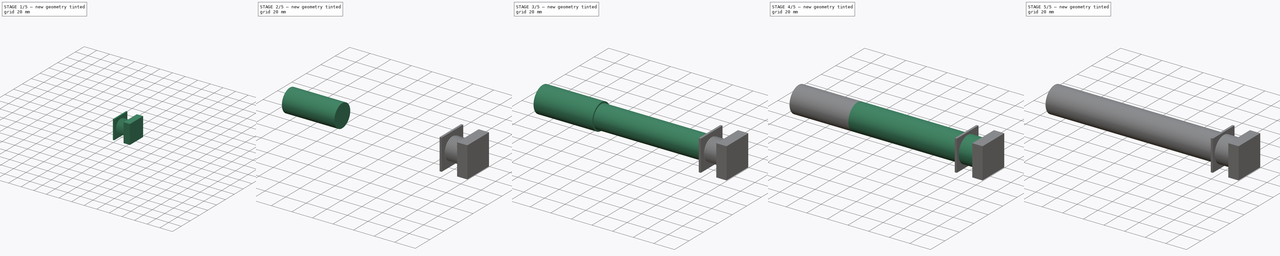
[diagram: build sequence overview — one tinted view per stage of 5, left to right]
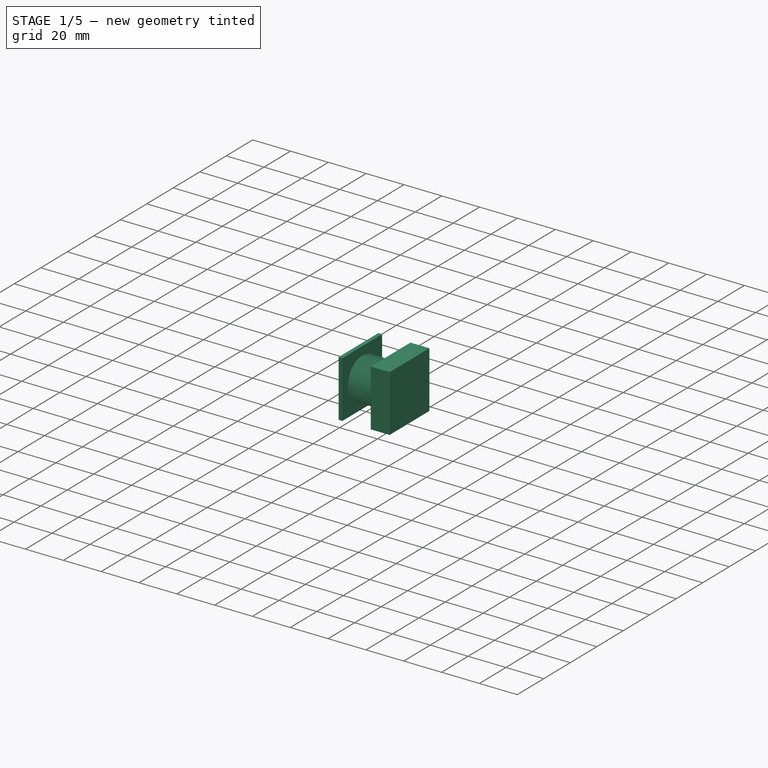
[diagram: stage 1 of 5 — iso view after this stage's code; geometry added in this stage tinted green]
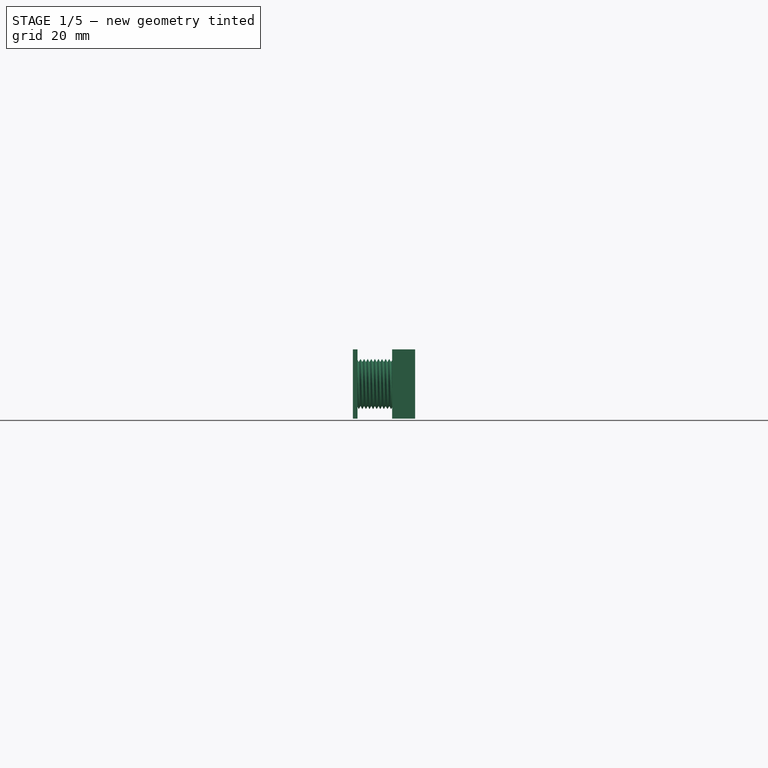
[diagram: stage 1 of 5 — front view after this stage's code; geometry added in this stage tinted green]
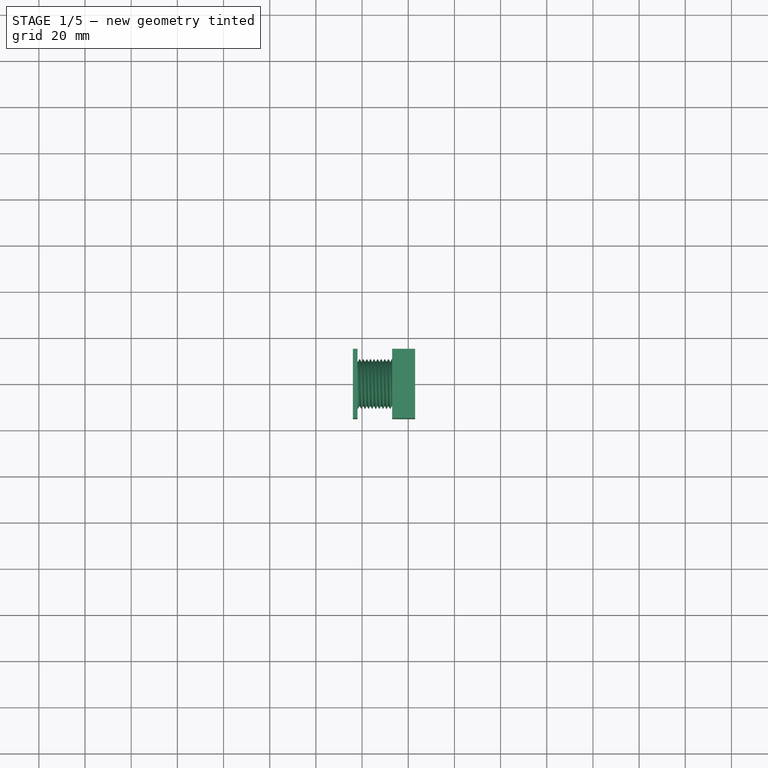
[diagram: stage 1 of 5 — top view after this stage's code; geometry added in this stage tinted green]
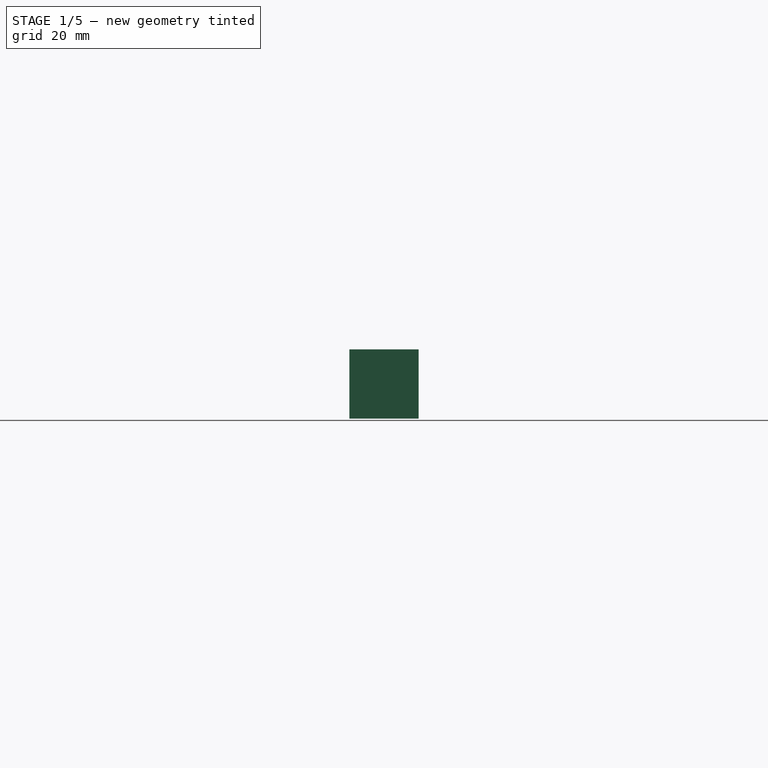
[diagram: stage 1 of 5 — right view after this stage's code; geometry added in this stage tinted green]
FCSTD DOCUMENT  (FreeCAD 0.17R13541 (Git))
Label: model3
License: All rights reserved
LicenseURL: http://en.wikipedia.org/wiki/All_rights_reserved
objects: Drawing::FeatureViewPython×23, Part::Cylinder×9, Drawing::FeatureViewPart×8, Part::Cut×5, Drawing::FeaturePage×4, Sketcher::SketchObject×2, Part::Box×2, Part::Helix×1, Part::Sweep×1
note: 20 computed .brp shape members not serialized (recipe doc carries the construction recipe); baked Part::Feature solids carry a one-line shape summary decoded from their .brp

FEATURE [Sketcher::SketchObject] Sketch002  label="T1"
  Placement = pos=(156,0,-10) rot=(-1,0,0;4.71239rad)
  sketch-geometry (3):
    g0: LineSegment StartX=-0.00292184 StartY=1.46965 StartZ=0 EndX=-0.851422 EndY=0 EndZ=0
    g1: LineSegment StartX=0.845578 StartY=0 StartZ=0 EndX=-0.00292184 EndY=1.46965 EndZ=0
    g2: LineSegment StartX=-0.851422 StartY=0 StartZ=0 EndX=0.845578 EndY=0 EndZ=0
  constraints (8):
    c: PointOnObject(g1,g-1)
    c: Coincident(g1,g0)
    c: Coincident(g2,g0)
    c: Coincident(g2,g1)
    c: Horizontal(g2)
    c: Angle(g2,g0) = 1.0472
    c: Angle(g1,g2) = 1.0472
    c: Distance(g0) = 1.697
FEATURE [Sketcher::SketchObject] Sketch003  label="T2"
  Placement = pos=(157,0,-9.4) rot=(-1,0,0;4.71239rad)
  sketch-geometry (3):
    g0: LineSegment StartX=-0.8485 StartY=-0.00070589 StartZ=0 EndX=0.8485 EndY=-0.00070589 EndZ=0
    g1: LineSegment StartX=0.8485 StartY=-0.00070589 StartZ=0 EndX=0 EndY=-1.47035 EndZ=0
    g2: LineSegment StartX=-0.8485 StartY=-0.00070589 StartZ=0 EndX=0 EndY=-1.47035 EndZ=0
  constraints (7):
    c: Coincident(g1,g0)
    c: Coincident(g2,g0)
    c: Coincident(g2,g1)
    c: Angle(g2,g0) = 1.0472
    c: Angle(g0,g1) = 1.0472
    c: Horizontal(g0)
    c: Distance(g0) = 1.697
FEATURE [Part::Sweep] Sweep002
  Frenet = true
  Sections = -> [Sketch003]
  Solid = true
  Spine = -> Helix001
  Transition = 1
FEATURE [Drawing::FeatureViewPart] Ortho006  label="Ortho_0_003"
  Direction = (1,0,0)
  HiddenWidth = 0.15
  LineWidth = 0.35
  Rotation = -90
  Scale = 5
  ShowHiddenLines = true
  ShowSmoothLines = false
  Source = -> Sweep002
  Tolerance = 0.05
  ViewResult = <blob: 35064 chars omitted>
  Visible = true
  X = 84.2881
  Y = 81.4997
FEATURE [Drawing::FeatureViewPart] Ortho007  label="Ortho_1_003"
  Direction = (0,1,0)
  HiddenWidth = 0.15
  LineWidth = 0.35
  Rotation = -90
  Scale = 5
  ShowHiddenLines = true
  ShowSmoothLines = false
  Source = -> Sweep002
  Tolerance = 0.05
  ViewResult = <blob: 37496 chars omitted>
  Visible = true
  X = 1047.82
  Y = 81.4997
FEATURE [Drawing::FeatureViewPython] dim014  # drawing view (typed FeaturePython)
  Rotation = 0
  ViewResult = <g> \n  <line x1="37.285050" y1="81.404916" x2="37.285050" y2="18.492057" style="stroke:rgb(255,0,0);stroke-width:0.10" />\n<line x1="131.291700" y1="81.499806" x2="131.291700" y2="18.492057" style="stroke:rgb(255,0,0);stroke-width:0.10" />\n<line x1="37.285050" y1="19.492057" x2="131.291700" y2="19.492057" style="stroke:rgb(255,0,0);stroke-width:0.10" /> \n  <polygon points="131.291700,19.492057 129.291700,18.992057 128.791700,19.492057 129.291700,19.992057" style="fill:rgb(255,0,0);stroke:rgb(255,0,0);stroke-width:0" /><polygon points="37.285050,19.492057 39.285050,19.992057 39.785050,19.492057 39.285050,18.992057" style="fill:rgb(255,0,0);stroke:rgb(255,0,0);stroke-width:0" /> \n  <text x="84.288375" y="17.492057" font-family="inherit" font-size="3.6" fill="rgb(0,0,0)" text-anchor="middle" transform="rotate(0.000000 84.288375,17.492057)" >18.801</text> </g>
  Visible = true
  X = 0
  Y = 0
  arrowL1 = 2
  arrowL2 = 0.5
  arrowW = 1
  arrow_scheme = 0
  autoPlaceOffset = 2
  autoPlaceText = true
  click1_x = 121.509
  click1_y = 19.4921
  click2_x = 121.509
  click2_y = 19.4921
  comma_decimal_place = false
  dimension_line_overshoot = 1
  gap_datum_points = 0
  halfDimension_linear = false
  lineColor = rgb(255,0,0)
  strokeWidth = 0.1
  textFormat_linear = %(value)3.3f
  textRenderer_color = rgb(0,0,0)
  textRenderer_family = inherit
  textRenderer_size = 3.6
  unit_custom_scale = 1
  unit_scheme = 0
FEATURE [Drawing::FeatureViewPython] dim015  # drawing view (typed FeaturePython)
  Rotation = 0
  ViewResult = <g> \n  <line x1="29.936600" y1="81.390063" x2="29.936600" y2="152.379870" style="stroke:rgb(255,0,0);stroke-width:0.10" />\n<line x1="138.640100" y1="81.499827" x2="138.640100" y2="152.379870" style="stroke:rgb(255,0,0);stroke-width:0.10" />\n<line x1="29.936600" y1="151.379870" x2="138.640100" y2="151.379870" style="stroke:rgb(255,0,0);stroke-width:0.10" /> \n  <polygon points="138.640100,151.379870 136.640100,150.879870 136.140100,151.379870 136.640100,151.879870" style="fill:rgb(255,0,0);stroke:rgb(255,0,0);stroke-width:0" /><polygon points="29.936600,151.379870 31.936600,151.879870 32.436600,151.379870 31.936600,150.879870" style="fill:rgb(255,0,0);stroke:rgb(255,0,0);stroke-width:0" /> \n  <text x="84.288350" y="149.379870" font-family="inherit" font-size="3.6" fill="rgb(0,0,0)" text-anchor="middle" transform="rotate(0.000000 84.288350,149.379870)" >21.741</text> </g>
  Visible = true
  X = 0
  Y = 0
  arrowL1 = 2
  arrowL2 = 0.5
  arrowW = 1
  arrow_scheme = 0
  autoPlaceOffset = 2
  autoPlaceText = true
  click1_x = 135.432
  click1_y = 151.38
  click2_x = 135.432
  click2_y = 151.38
  comma_decimal_place = false
  dimension_line_overshoot = 1
  gap_datum_points = 0
  halfDimension_linear = false
  lineColor = rgb(255,0,0)
  strokeWidth = 0.1
  textFormat_linear = %(value)3.3f
  textRenderer_color = rgb(0,0,0)
  textRenderer_family = inherit
  textRenderer_size = 3.6
  unit_custom_scale = 1
  unit_scheme = 0
FEATURE [Drawing::FeatureViewPython] dim016  # drawing view (typed FeaturePython)
  Rotation = 0
  ViewResult = <g> \n  <line x1="258.980000" y1="27.190200" x2="279.964242" y2="27.190200" style="stroke:rgb(255,0,0);stroke-width:0.10" />\n<line x1="262.770000" y1="135.809200" x2="279.964242" y2="135.809200" style="stroke:rgb(255,0,0);stroke-width:0.10" />\n<line x1="278.964242" y1="27.190200" x2="278.964242" y2="135.809200" style="stroke:rgb(255,0,0);stroke-width:0.10" /> \n  <polygon points="278.964242,135.809200 279.464242,133.809200 278.964242,133.309200 278.464242,133.809200" style="fill:rgb(255,0,0);stroke:rgb(255,0,0);stroke-width:0" /><polygon points="278.964242,27.190200 278.464242,29.190200 278.964242,29.690200 279.464242,29.190200" style="fill:rgb(255,0,0);stroke:rgb(255,0,0);stroke-width:0" /> \n  <text x="276.964242" y="81.499700" font-family="inherit" font-size="3.6" fill="rgb(0,0,0)" text-anchor="middle" transform="rotate(-90.000000 276.964242,81.499700)" >21.724</text> </g>
  Visible = true
  X = 0
  Y = 0
  arrowL1 = 2
  arrowL2 = 0.5
  arrowW = 1
  arrow_scheme = 0
  autoPlaceOffset = 2
  autoPlaceText = true
  click1_x = 278.964
  click1_y = 108.345
  click2_x = 278.964
  click2_y = 108.345
  comma_decimal_place = false
  dimension_line_overshoot = 1
  gap_datum_points = 0
  halfDimension_linear = false
  lineColor = rgb(255,0,0)
  strokeWidth = 0.1
  textFormat_linear = %(value)3.3f
  textRenderer_color = rgb(0,0,0)
  textRenderer_family = inherit
  textRenderer_size = 3.6
  unit_custom_scale = 1
  unit_scheme = 0
FEATURE [Drawing::FeaturePage] Page003
  EditableTexts = Designed by Name | Date | Scale | Weight | Title | Subtitle | Drawing number | Sheet
  Group = -> [Ortho006,Ortho007,dim014,dim015,dim016]
  Template = <path>
FEATURE [Part::Box] Box  label="Cube"
  AttacherType = Attacher::AttachEngine3D
  Height = 30
  Length = 10
  Placement = pos=(173,-15,-15) rot=(0,0,1;0rad)
  Width = 30
FEATURE [Part::Box] Box001  label="Cube001"
  AttacherType = Attacher::AttachEngine3D
  Height = 30
  Length = 2
  Placement = pos=(156,-15,-15) rot=(0,0,1;0rad)
  Width = 30
note: 4 file-system paths scrubbed to <path> (originals preserved in the JSON sidecar)
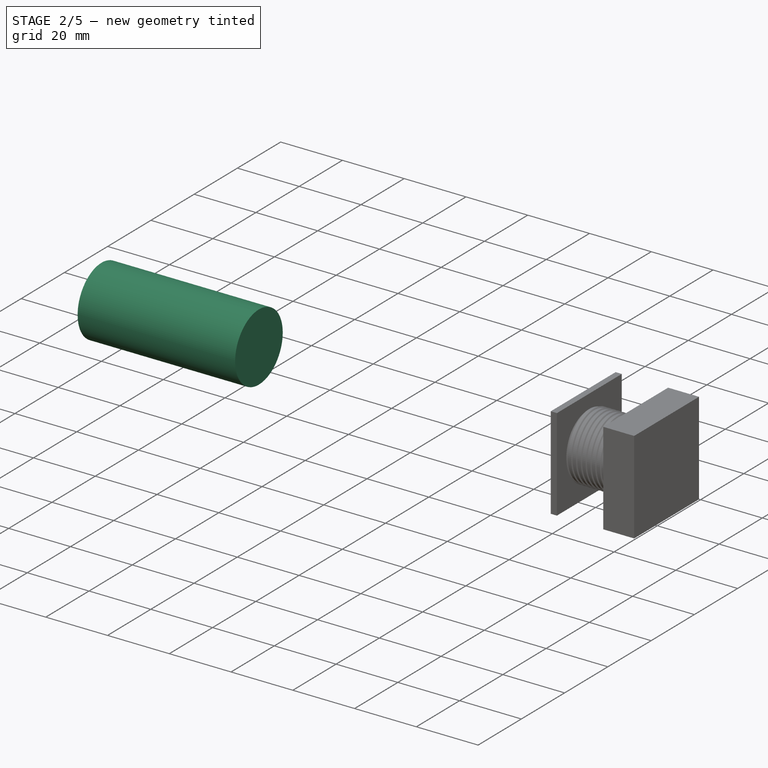
[diagram: stage 2 of 5 — iso view after this stage's code; geometry added in this stage tinted green]
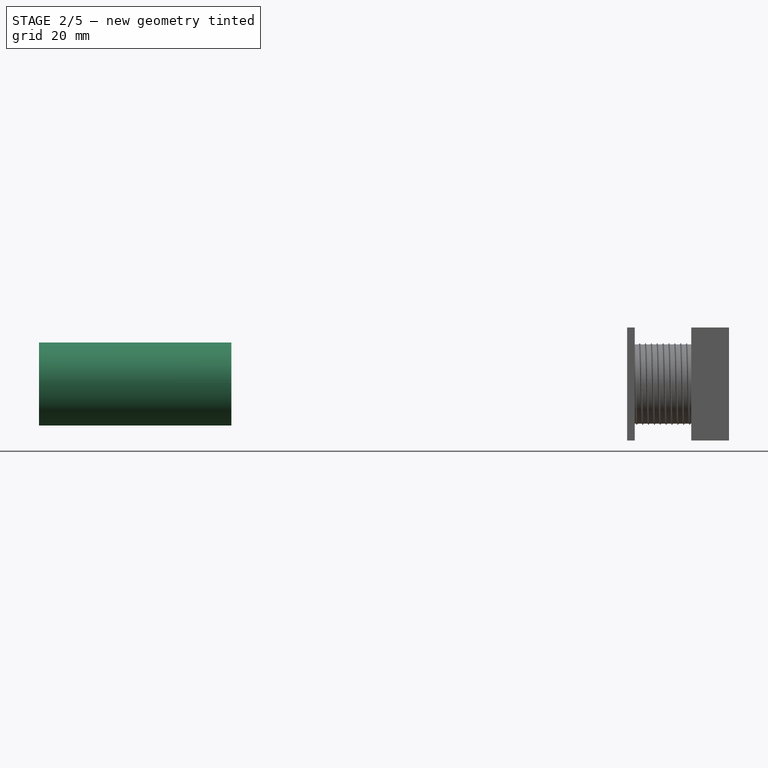
[diagram: stage 2 of 5 — front view after this stage's code; geometry added in this stage tinted green]
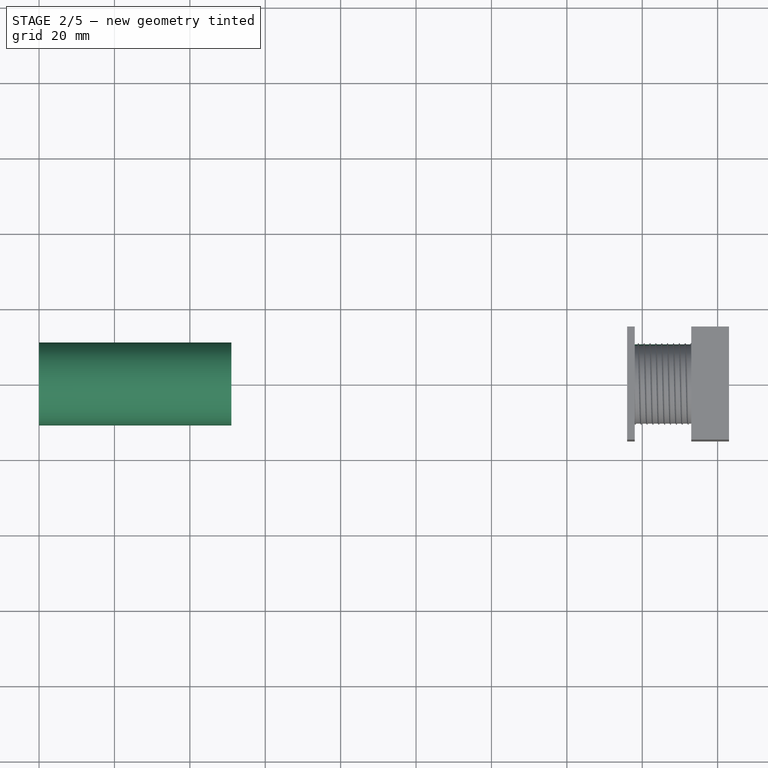
[diagram: stage 2 of 5 — top view after this stage's code; geometry added in this stage tinted green]
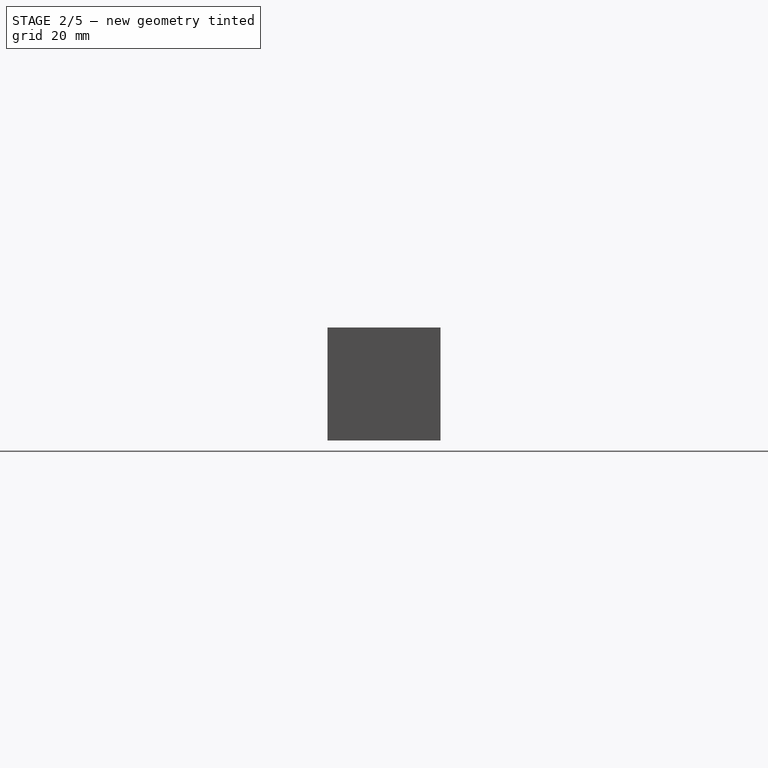
[diagram: stage 2 of 5 — right view after this stage's code; geometry added in this stage tinted green]
FEATURE [Part::Cylinder] Cylinder006  label="Cylinder004"
  Angle = 360
  AttacherType = Attacher::AttachEngine3D
  Height = 51
  Placement = pos=(0,0,0) rot=(0,1,0;1.5708rad)
  Radius = 11
FEATURE [Drawing::FeatureViewPart] Ortho004  label="Ortho_0_002"
  Direction = (1,0,0)
  HiddenWidth = 0.15
  LineWidth = 0.35
  Rotation = -90
  Scale = 2
  ShowHiddenLines = true
  ShowSmoothLines = false
  Source = -> Cut003
  Tolerance = 0.05
  ViewResult = <g id="Ortho_0_002"\n   transform="rotate(-90,72.6526,85.9155) translate(72.6526,85.9155) scale(2,2)"\n  >\n<g   fill="none"\n   stroke="rgb(0, 0, 0)"\n   stroke-dasharray="0.2,0.1)"\n   stroke-linecap="butt"\n   stroke-linejoin="miter"\n   stroke-width="0.075000"\n   transform="scale(1,-1)"\n  >\n<circle cx ="0" cy ="0" r ="12.5" /><circle cx ="0" cy ="0" r ="11" /></g>\n<g   fill="none"\n   stroke="rgb(0, 0, 0)"\n   stroke-linecap="butt"\n   stroke-linejoin="miter"\n   stroke-width="0.175000"\n   transform="scale(1,-1)"\n  >\n<circle cx ="1.26565e-14" cy ="0" r ="12.5" /><circle cx ="1.13243e-14" cy ="0" r ="11" /></g>\n</g>
  Visible = false
  X = 72.6526
  Y = 85.9155
FEATURE [Drawing::FeatureViewPart] Ortho005  label="Ortho_1_002"
  Direction = (0,1,0)
  HiddenWidth = 0.15
  LineWidth = 0.35
  Rotation = -90
  Scale = 2
  ShowHiddenLines = true
  ShowSmoothLines = false
  Source = -> Cut003
  Tolerance = 0.05
  ViewResult = <blob: 2946 chars omitted>
  Visible = false
  X = 237.305
  Y = 85.9155
FEATURE [Drawing::FeatureViewPython] dia006  # drawing view (typed FeaturePython)
  Rotation = 0
  ViewResult = <g>  <circle cx ="72.652600" cy ="85.915500" r="0.250000" stroke="none" fill="rgb(255,0,0)" /> \n<line x1="51.641293" y1="131.887813" x2="81.797656" y2="65.906303" style="stroke:rgb(255,0,0);stroke-width:0.10" />\n<polygon points="63.507544,105.924697 64.793667,104.313521 64.546755,103.650924 63.884159,103.897837" style="fill:rgb(255,0,0);stroke:rgb(255,0,0);stroke-width:0" />\n<polygon points="81.797656,65.906303 80.511533,67.517479 80.758445,68.180076 81.421041,67.933163" style="fill:rgb(255,0,0);stroke:rgb(255,0,0);stroke-width:0" />\n<line x1="51.641293" y1="131.887813" x2="34.933816" y2="131.887813" style="stroke:rgb(255,0,0);stroke-width:0.10" />\n<text x="43.287555" y="129.887813" font-family="inherit" font-size="3.6" fill="rgb(0,0,0)" text-anchor="middle" transform="rotate(0.000000 43.287555,129.887813)" >Ø22</text> </g>
  Visible = false
  X = 0
  Y = 0
  arrowL1 = 2
  arrowL2 = 0.5
  arrowW = 1
  arrow_scheme = 0
  autoPlaceOffset = 2
  autoPlaceText = true
  centerPointDia = 0.5
  click1_x = 51.6413
  click1_y = 131.888
  click2_x = 34.9338
  click2_y = 135.685
  click3_x = 34.9338
  click3_y = 135.685
  comma_decimal_place = false
  lineColor = rgb(255,0,0)
  strokeWidth = 0.1
  textFormat_circular = Ø%(value)3.3f
  textRenderer_color = rgb(0,0,0)
  textRenderer_family = inherit
  textRenderer_size = 3.6
  unit_custom_scale = 1
  unit_scheme = 0
FEATURE [Drawing::FeatureViewPython] dia007  # drawing view (typed FeaturePython)
  Rotation = 0
  ViewResult = <g>  <circle cx ="72.652600" cy ="85.915500" r="0.250000" stroke="none" fill="rgb(255,0,0)" /> \n<line x1="42.274980" y1="115.180336" x2="90.656959" y2="68.570672" style="stroke:rgb(255,0,0);stroke-width:0.10" />\n<polygon points="54.648241,103.260328 56.435487,102.232829 56.448677,101.525846 55.741694,101.512655" style="fill:rgb(255,0,0);stroke:rgb(255,0,0);stroke-width:0" />\n<polygon points="90.656959,68.570672 88.869713,69.598171 88.856523,70.305154 89.563506,70.318345" style="fill:rgb(255,0,0);stroke:rgb(255,0,0);stroke-width:0" />\n<line x1="42.274980" y1="115.180336" x2="27.086365" y2="115.180336" style="stroke:rgb(255,0,0);stroke-width:0.10" />\n<text x="34.680673" y="113.180336" font-family="inherit" font-size="3.6" fill="rgb(0,0,0)" text-anchor="middle" transform="rotate(0.000000 34.680673,113.180336)" >Ø25</text> </g>
  Visible = false
  X = 0
  Y = 0
  arrowL1 = 2
  arrowL2 = 0.5
  arrowW = 1
  arrow_scheme = 0
  autoPlaceOffset = 2
  autoPlaceText = true
  centerPointDia = 0.5
  click1_x = 42.275
  click1_y = 115.18
  click2_x = 27.0864
  click2_y = 118.218
  click3_x = 27.0864
  click3_y = 118.218
  comma_decimal_place = false
  lineColor = rgb(255,0,0)
  strokeWidth = 0.1
  textFormat_circular = Ø%(value)3.3f
  textRenderer_color = rgb(0,0,0)
  textRenderer_family = inherit
  textRenderer_size = 3.6
  unit_custom_scale = 1
  unit_scheme = 0
FEATURE [Drawing::FeatureViewPython] dim010  # drawing view (typed FeaturePython)
  Rotation = 0
  ViewResult = <g> \n  <line x1="135.305000" y1="60.915500" x2="113.783939" y2="60.915500" style="stroke:rgb(255,0,0);stroke-width:0.10" />\n<line x1="135.305000" y1="110.915500" x2="113.783939" y2="110.915500" style="stroke:rgb(255,0,0);stroke-width:0.10" />\n<line x1="114.783939" y1="60.915500" x2="114.783939" y2="110.915500" style="stroke:rgb(255,0,0);stroke-width:0.10" /> \n  <polygon points="114.783939,110.915500 115.283939,108.915500 114.783939,108.415500 114.283939,108.915500" style="fill:rgb(255,0,0);stroke:rgb(255,0,0);stroke-width:0" /><polygon points="114.783939,60.915500 114.283939,62.915500 114.783939,63.415500 115.283939,62.915500" style="fill:rgb(255,0,0);stroke:rgb(255,0,0);stroke-width:0" /> \n  <text x="112.783939" y="85.915500" font-family="inherit" font-size="3.6" fill="rgb(0,0,0)" text-anchor="middle" transform="rotate(-90.000000 112.783939,85.915500)" >25</text> </g>
  Visible = false
  X = 0
  Y = 0
  arrowL1 = 2
  arrowL2 = 0.5
  arrowW = 1
  arrow_scheme = 0
  autoPlaceOffset = 2
  autoPlaceText = true
  click1_x = 114.784
  click1_y = 107.551
  click2_x = 114.784
  click2_y = 107.551
  comma_decimal_place = false
  dimension_line_overshoot = 1
  gap_datum_points = 0
  halfDimension_linear = false
  lineColor = rgb(255,0,0)
  strokeWidth = 0.1
  textFormat_linear = %(value)3.3f
  textRenderer_color = rgb(0,0,0)
  textRenderer_family = inherit
  textRenderer_size = 3.6
  unit_custom_scale = 1
  unit_scheme = 0
FEATURE [Drawing::FeatureViewPython] dim011  # drawing view (typed FeaturePython)
  Rotation = 0
  ViewResult = <g> \n  <line x1="135.305000" y1="63.915500" x2="123.737617" y2="63.915500" style="stroke:rgb(255,0,0);stroke-width:0.10" />\n<line x1="135.305000" y1="107.915500" x2="123.737617" y2="107.915500" style="stroke:rgb(255,0,0);stroke-width:0.10" />\n<line x1="124.737617" y1="63.915500" x2="124.737617" y2="107.915500" style="stroke:rgb(255,0,0);stroke-width:0.10" /> \n  <polygon points="124.737617,107.915500 125.237617,105.915500 124.737617,105.415500 124.237617,105.915500" style="fill:rgb(255,0,0);stroke:rgb(255,0,0);stroke-width:0" /><polygon points="124.737617,63.915500 124.237617,65.915500 124.737617,66.415500 125.237617,65.915500" style="fill:rgb(255,0,0);stroke:rgb(255,0,0);stroke-width:0" /> \n  <text x="122.737617" y="85.915500" font-family="inherit" font-size="3.6" fill="rgb(0,0,0)" text-anchor="middle" transform="rotate(-90.000000 122.737617,85.915500)" >22</text> </g>
  Visible = false
  X = 0
  Y = 0
  arrowL1 = 2
  arrowL2 = 0.5
  arrowW = 1
  arrow_scheme = 0
  autoPlaceOffset = 2
  autoPlaceText = true
  click1_x = 124.738
  click1_y = 107.467
  click2_x = 124.738
  click2_y = 107.467
  comma_decimal_place = false
  dimension_line_overshoot = 1
  gap_datum_points = 0
  halfDimension_linear = false
  lineColor = rgb(255,0,0)
  strokeWidth = 0.1
  textFormat_linear = %(value)3.3f
  textRenderer_color = rgb(0,0,0)
  textRenderer_family = inherit
  textRenderer_size = 3.6
  unit_custom_scale = 1
  unit_scheme = 0
FEATURE [Drawing::FeatureViewPython] dim012  # drawing view (typed FeaturePython)
  Rotation = 0
  ViewResult = <g> \n  <line x1="237.305000" y1="105.736820" x2="237.305000" y2="121.483827" style="stroke:rgb(255,0,0);stroke-width:0.10" />\n<line x1="249.305000" y1="105.461280" x2="249.305000" y2="121.483827" style="stroke:rgb(255,0,0);stroke-width:0.10" />\n<line x1="237.305000" y1="120.483827" x2="249.305000" y2="120.483827" style="stroke:rgb(255,0,0);stroke-width:0.10" /> \n  <polygon points="249.305000,120.483827 247.305000,119.983827 246.805000,120.483827 247.305000,120.983827" style="fill:rgb(255,0,0);stroke:rgb(255,0,0);stroke-width:0" /><polygon points="237.305000,120.483827 239.305000,120.983827 239.805000,120.483827 239.305000,119.983827" style="fill:rgb(255,0,0);stroke:rgb(255,0,0);stroke-width:0" /> \n  <text x="243.305000" y="118.483827" font-family="inherit" font-size="3.6" fill="rgb(0,0,0)" text-anchor="middle" transform="rotate(0.000000 243.305000,118.483827)" >6</text> </g>
  Visible = false
  X = 0
  Y = 0
  arrowL1 = 2
  arrowL2 = 0.5
  arrowW = 1
  arrow_scheme = 0
  autoPlaceOffset = 2
  autoPlaceText = true
  click1_x = 247.65
  click1_y = 120.484
  click2_x = 247.65
  click2_y = 120.484
  comma_decimal_place = false
  dimension_line_overshoot = 1
  gap_datum_points = 0
  halfDimension_linear = false
  lineColor = rgb(255,0,0)
  strokeWidth = 0.1
  textFormat_linear = %(value)3.3f
  textRenderer_color = rgb(0,0,0)
  textRenderer_family = inherit
  textRenderer_size = 3.6
  unit_custom_scale = 1
  unit_scheme = 0
FEATURE [Drawing::FeatureViewPython] dim013  # drawing view (typed FeaturePython)
  Rotation = 0
  ViewResult = <g> \n  <line x1="249.305000" y1="110.915500" x2="249.305000" y2="131.680553" style="stroke:rgb(255,0,0);stroke-width:0.10" />\n<line x1="135.305000" y1="110.915500" x2="135.305000" y2="131.680553" style="stroke:rgb(255,0,0);stroke-width:0.10" />\n<line x1="249.305000" y1="130.680553" x2="135.305000" y2="130.680553" style="stroke:rgb(255,0,0);stroke-width:0.10" /> \n  <polygon points="135.305000,130.680553 137.305000,131.180553 137.805000,130.680553 137.305000,130.180553" style="fill:rgb(255,0,0);stroke:rgb(255,0,0);stroke-width:0" /><polygon points="249.305000,130.680553 247.305000,130.180553 246.805000,130.680553 247.305000,131.180553" style="fill:rgb(255,0,0);stroke:rgb(255,0,0);stroke-width:0" /> \n  <text x="192.305000" y="128.680553" font-family="inherit" font-size="3.6" fill="rgb(0,0,0)" text-anchor="middle" transform="rotate(0.000000 192.305000,128.680553)" >57</text> </g>
  Visible = false
  X = 0
  Y = 0
  arrowL1 = 2
  arrowL2 = 0.5
  arrowW = 1
  arrow_scheme = 0
  autoPlaceOffset = 2
  autoPlaceText = true
  click1_x = 233.973
  click1_y = 130.681
  click2_x = 233.973
  click2_y = 130.681
  comma_decimal_place = false
  dimension_line_overshoot = 1
  gap_datum_points = 0
  halfDimension_linear = false
  lineColor = rgb(255,0,0)
  strokeWidth = 0.1
  textFormat_linear = %(value)3.3f
  textRenderer_color = rgb(0,0,0)
  textRenderer_family = inherit
  textRenderer_size = 3.6
  unit_custom_scale = 1
  unit_scheme = 0
FEATURE [Drawing::FeaturePage] Page002  label="Battery Cap"
  EditableTexts = AUTHOR NAME | DRAWING TITLE | FreeCAD DRAWING | A4 | X / Y | SCALE | PN | DN | DD/MM/YYYY | REV A
  Group = -> [Ortho004,Ortho005,dia006,dia007,dim010,dim011,dim012,dim013]
  Template = <path>//share/freecad/Mod/Drawing/Templates/A4_Landscape_ISO7200.svg
FEATURE [Part::Helix] Helix001
  Angle = 0
  AttacherType = Attacher::AttachEngine3D
  Height = 20
  LocalCoord = 0
  Pitch = 1.5556
  Placement = pos=(157,0,0) rot=(0,1,0;1.5708rad)
  Radius = 10.5
  Style = 1
FEATURE [Part::Cylinder] Cylinder007  label="Cylinder005"
  Angle = 360
  AttacherType = Attacher::AttachEngine3D
  Height = 25
  Placement = pos=(156,0,0) rot=(0,1,0;1.5708rad)
  Radius = 10.5
FEATURE [Part::Cylinder] Cylinder009  label="Cylinder007"
  Angle = 360
  AttacherType = Attacher::AttachEngine3D
  Height = 25
  Placement = pos=(156,0,0) rot=(0,1,0;1.5708rad)
  Radius = 9.5
FEATURE [Part::Cut] Cut004
  Base = -> Cylinder007
  Tool = -> Cylinder009
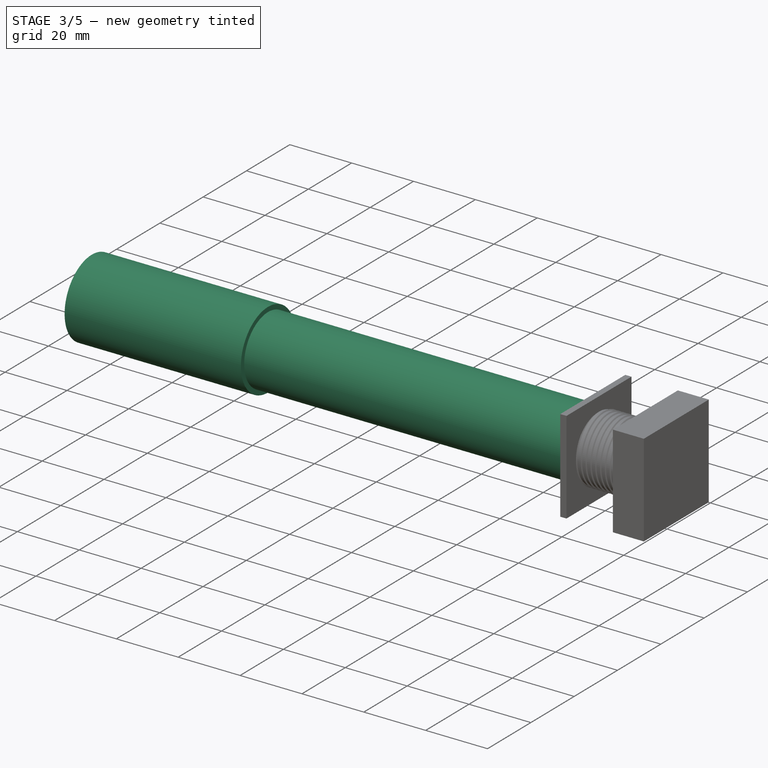
[diagram: stage 3 of 5 — iso view after this stage's code; geometry added in this stage tinted green]
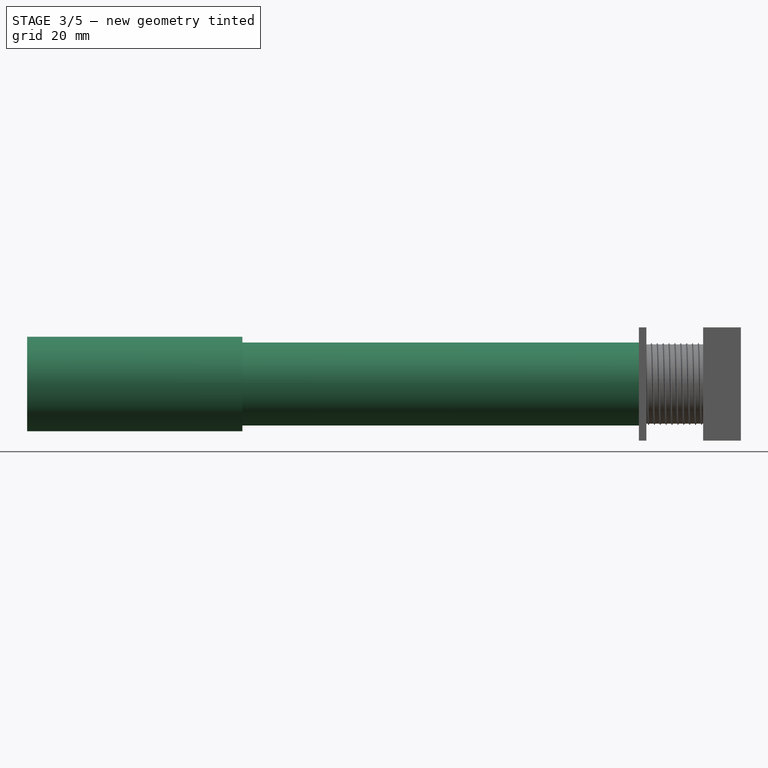
[diagram: stage 3 of 5 — front view after this stage's code; geometry added in this stage tinted green]
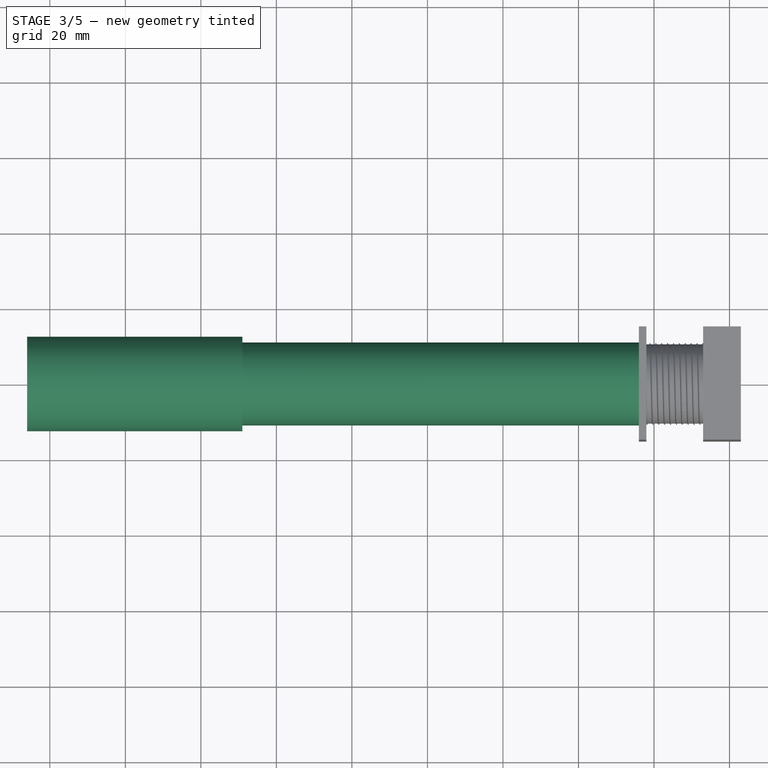
[diagram: stage 3 of 5 — top view after this stage's code; geometry added in this stage tinted green]
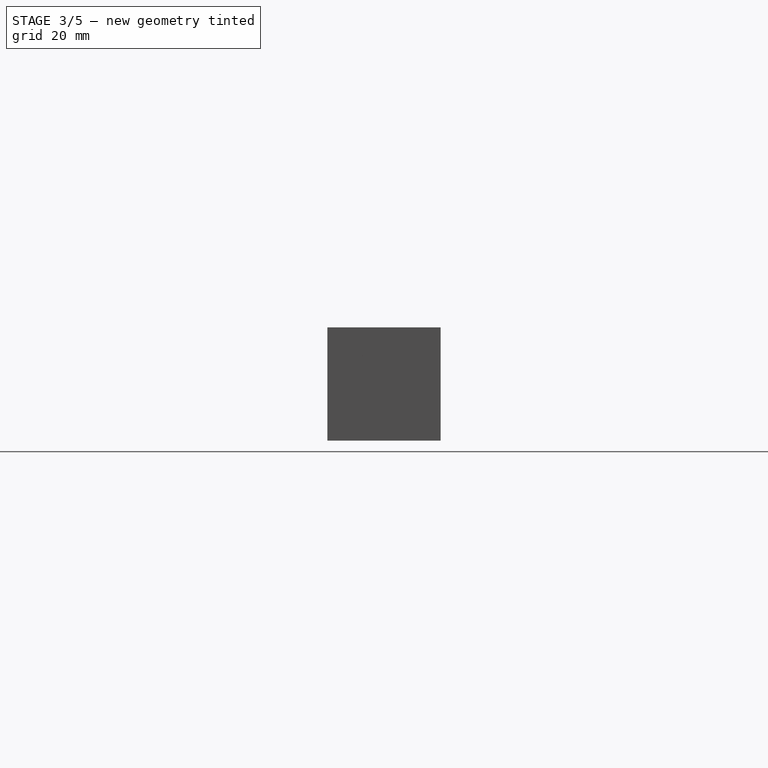
[diagram: stage 3 of 5 — right view after this stage's code; geometry added in this stage tinted green]
FEATURE [Part::Cylinder] Cylinder003  label="Cylinder001"
  Angle = 360
  AttacherType = Attacher::AttachEngine3D
  Height = 105
  Placement = pos=(51,0,0) rot=(0,1,0;1.5708rad)
  Radius = 11
FEATURE [Drawing::FeatureViewPart] Ortho  label="Ortho_0_0"
  Direction = (1,0,0)
  HiddenWidth = 0.15
  LineWidth = 0.35
  Rotation = -90
  ShowHiddenLines = true
  ShowSmoothLines = false
  Source = -> Cut
  Tolerance = 0.05
  ViewResult = <g id="Ortho_0_0"\n   transform="rotate(-90,53.9733,81.5) translate(53.9733,81.5) scale(1,1)"\n  >\n<g   fill="none"\n   stroke="rgb(0, 0, 0)"\n   stroke-dasharray="0.2,0.1)"\n   stroke-linecap="butt"\n   stroke-linejoin="miter"\n   stroke-width="0.150000"\n   transform="scale(1,-1)"\n  >\n<circle cx ="0" cy ="0" r ="11" /><circle cx ="0" cy ="0" r ="9.5" /></g>\n<g   fill="none"\n   stroke="rgb(0, 0, 0)"\n   stroke-linecap="butt"\n   stroke-linejoin="miter"\n   stroke-width="0.350000"\n   transform="scale(1,-1)"\n  >\n<circle cx ="3.4639e-14" cy ="0" r ="11" /><circle cx ="3.4639e-14" cy ="0" r ="9.5" /></g>\n</g>
  Visible = false
  X = 53.9733
  Y = 81.5
FEATURE [Drawing::FeatureViewPart] Ortho001  label="Ortho_1_0"
  Direction = (0,1,0)
  HiddenWidth = 0.15
  LineWidth = 0.35
  Rotation = -90
  ShowHiddenLines = true
  ShowSmoothLines = false
  Source = -> Cut
  Tolerance = 0.05
  ViewResult = <blob: 3266 chars omitted>
  Visible = false
  X = 253.947
  Y = 81.5
FEATURE [Drawing::FeatureViewPart] Ortho002  label="Ortho_0_001"
  Direction = (1,0,0)
  HiddenWidth = 0.15
  LineWidth = 0.35
  Rotation = -90
  ShowHiddenLines = true
  ShowSmoothLines = false
  Source = -> Cut002
  Tolerance = 0.05
  ViewResult = <g id="Ortho_0_001"\n   transform="rotate(-90,46.1363,81.5) translate(46.1363,81.5) scale(1,1)"\n  >\n<g   fill="none"\n   stroke="rgb(0, 0, 0)"\n   stroke-dasharray="0.2,0.1)"\n   stroke-linecap="butt"\n   stroke-linejoin="miter"\n   stroke-width="0.150000"\n   transform="scale(1,-1)"\n  >\n<circle cx ="0" cy ="0" r ="12.5" /><circle cx ="0" cy ="0" r ="11" /><circle cx ="0" cy ="0" r ="9.5" /><circle cx ="2.33147e-14" cy ="0" r ="11" /></g>\n<g   fill="none"\n   stroke="rgb(0, 0, 0)"\n   stroke-linecap="butt"\n   stroke-linejoin="miter"\n   stroke-width="0.350000"\n   transform="scale(1,-1)"\n  >\n<circle cx ="2.88658e-14" cy ="0" r ="12.5" /><circle cx ="5.55112e-15" cy ="0" r ="9.5" /></g>\n</g>
  Visible = false
  X = 46.1363
  Y = 81.5
FEATURE [Drawing::FeatureViewPart] Ortho003  label="Ortho_1_001"
  Direction = (0,1,0)
  HiddenWidth = 0.15
  LineWidth = 0.35
  Rotation = -90
  ShowHiddenLines = true
  ShowSmoothLines = false
  Source = -> Cut002
  Tolerance = 0.05
  ViewResult = <blob: 3663 chars omitted>
  Visible = false
  X = 263.273
  Y = 81.5
FEATURE [Drawing::FeatureViewPython] dim001  # drawing view (typed FeaturePython)
  Rotation = 0
  ViewResult = <g> \n  <line x1="97.947000" y1="70.500000" x2="86.900823" y2="70.500000" style="stroke:rgb(255,0,0);stroke-width:0.10" />\n<line x1="97.947000" y1="92.500000" x2="86.900823" y2="92.500000" style="stroke:rgb(255,0,0);stroke-width:0.10" />\n<line x1="87.900823" y1="70.500000" x2="87.900823" y2="92.500000" style="stroke:rgb(255,0,0);stroke-width:0.10" /> \n  <polygon points="87.900823,92.500000 88.400823,90.500000 87.900823,90.000000 87.400823,90.500000" style="fill:rgb(255,0,0);stroke:rgb(255,0,0);stroke-width:0" /><polygon points="87.900823,70.500000 87.400823,72.500000 87.900823,73.000000 88.400823,72.500000" style="fill:rgb(255,0,0);stroke:rgb(255,0,0);stroke-width:0" /> \n  <text x="85.900823" y="81.500000" font-family="inherit" font-size="3.6" fill="rgb(0,0,0)" text-anchor="middle" transform="rotate(-90.000000 85.900823,81.500000)" >22</text> </g>
  Visible = false
  X = 0
  Y = 0
  arrowL1 = 2
  arrowL2 = 0.5
  arrowW = 1
  arrow_scheme = 0
  autoPlaceOffset = 2
  autoPlaceText = true
  click1_x = 87.9008
  click1_y = 93.4542
  click2_x = 87.9008
  click2_y = 93.4542
  comma_decimal_place = false
  dimension_line_overshoot = 1
  gap_datum_points = 0
  halfDimension_linear = false
  lineColor = rgb(255,0,0)
  strokeWidth = 0.1
  textFormat_linear = %(value)3.3f
  textRenderer_color = rgb(0,0,0)
  textRenderer_family = inherit
  textRenderer_size = 3.6
  unit_custom_scale = 1
  unit_scheme = 1
FEATURE [Drawing::FeatureViewPython] dim002  # drawing view (typed FeaturePython)
  Rotation = 0
  ViewResult = <g> \n  <line x1="97.947000" y1="72.000000" x2="93.236913" y2="72.000000" style="stroke:rgb(255,0,0);stroke-width:0.10" />\n<line x1="97.947000" y1="91.000000" x2="93.236913" y2="91.000000" style="stroke:rgb(255,0,0);stroke-width:0.10" />\n<line x1="94.236913" y1="72.000000" x2="94.236913" y2="91.000000" style="stroke:rgb(255,0,0);stroke-width:0.10" /> \n  <polygon points="94.236913,91.000000 94.736913,89.000000 94.236913,88.500000 93.736913,89.000000" style="fill:rgb(255,0,0);stroke:rgb(255,0,0);stroke-width:0" /><polygon points="94.236913,72.000000 93.736913,74.000000 94.236913,74.500000 94.736913,74.000000" style="fill:rgb(255,0,0);stroke:rgb(255,0,0);stroke-width:0" /> \n  <text x="92.236913" y="81.500000" font-family="inherit" font-size="3.6" fill="rgb(0,0,0)" text-anchor="middle" transform="rotate(-90.000000 92.236913,81.500000)" >19</text> </g>
  Visible = false
  X = 0
  Y = 0
  arrowL1 = 2
  arrowL2 = 0.5
  arrowW = 1
  arrow_scheme = 0
  autoPlaceOffset = 2
  autoPlaceText = true
  click1_x = 94.2369
  click1_y = 91.3504
  click2_x = 94.2369
  click2_y = 91.3504
  comma_decimal_place = false
  dimension_line_overshoot = 1
  gap_datum_points = 0
  halfDimension_linear = false
  lineColor = rgb(255,0,0)
  strokeWidth = 0.1
  textFormat_linear = %(value)3.3f
  textRenderer_color = rgb(0,0,0)
  textRenderer_family = inherit
  textRenderer_size = 3.6
  unit_custom_scale = 1
  unit_scheme = 1
FEATURE [Drawing::FeatureViewPython] dim003  # drawing view (typed FeaturePython)
  Rotation = 0
  ViewResult = <g> \n  <line x1="97.947000" y1="92.500000" x2="97.947000" y2="101.835532" style="stroke:rgb(255,0,0);stroke-width:0.10" />\n<line x1="253.947000" y1="92.500000" x2="253.947000" y2="101.835532" style="stroke:rgb(255,0,0);stroke-width:0.10" />\n<line x1="97.947000" y1="100.835532" x2="253.947000" y2="100.835532" style="stroke:rgb(255,0,0);stroke-width:0.10" /> \n  <polygon points="253.947000,100.835532 251.947000,100.335532 251.447000,100.835532 251.947000,101.335532" style="fill:rgb(255,0,0);stroke:rgb(255,0,0);stroke-width:0" /><polygon points="97.947000,100.835532 99.947000,101.335532 100.447000,100.835532 99.947000,100.335532" style="fill:rgb(255,0,0);stroke:rgb(255,0,0);stroke-width:0" /> \n  <text x="175.947000" y="98.835532" font-family="inherit" font-size="3.6" fill="rgb(0,0,0)" text-anchor="middle" transform="rotate(0.000000 175.947000,98.835532)" >156</text> </g>
  Visible = false
  X = 0
  Y = 0
  arrowL1 = 2
  arrowL2 = 0.5
  arrowW = 1
  arrow_scheme = 0
  autoPlaceOffset = 2
  autoPlaceText = true
  click1_x = 230.572
  click1_y = 100.836
  click2_x = 230.572
  click2_y = 100.836
  comma_decimal_place = false
  dimension_line_overshoot = 1
  gap_datum_points = 0
  halfDimension_linear = false
  lineColor = rgb(255,0,0)
  strokeWidth = 0.1
  textFormat_linear = %(value)3.3f
  textRenderer_color = rgb(0,0,0)
  textRenderer_family = inherit
  textRenderer_size = 3.6
  unit_custom_scale = 1
  unit_scheme = 1
FEATURE [Drawing::FeatureViewPython] dia001  # drawing view (typed FeaturePython)
  Rotation = 0
  ViewResult = <g>  <circle cx ="53.973300" cy ="81.500000" r="0.250000" stroke="none" fill="rgb(255,0,0)" /> \n<line x1="43.596768" y1="101.188357" x2="58.402650" y2="73.095783" style="stroke:rgb(255,0,0);stroke-width:0.10" />\n<polygon points="49.543950,89.904217 50.918772,88.368032 50.709568,87.692581 50.034118,87.901784" style="fill:rgb(255,0,0);stroke:rgb(255,0,0);stroke-width:0" />\n<polygon points="58.402650,73.095783 57.027828,74.631968 57.237032,75.307419 57.912482,75.098216" style="fill:rgb(255,0,0);stroke:rgb(255,0,0);stroke-width:0" />\n<line x1="43.596768" y1="101.188357" x2="34.051913" y2="101.188357" style="stroke:rgb(255,0,0);stroke-width:0.10" />\n<text x="38.824341" y="99.188357" font-family="inherit" font-size="3.6" fill="rgb(0,0,0)" text-anchor="middle" transform="rotate(0.000000 38.824341,99.188357)" >Ø19</text> </g>
  Visible = false
  X = 0
  Y = 0
  arrowL1 = 2
  arrowL2 = 0.5
  arrowW = 1
  arrow_scheme = 0
  autoPlaceOffset = 2
  autoPlaceText = true
  centerPointDia = 0.5
  click1_x = 43.5968
  click1_y = 101.188
  click2_x = 34.0519
  click2_y = 100.93
  click3_x = 34.0519
  click3_y = 100.93
  comma_decimal_place = false
  lineColor = rgb(255,0,0)
  strokeWidth = 0.1
  textFormat_circular = Ø%(value)3.3f
  textRenderer_color = rgb(0,0,0)
  textRenderer_family = inherit
  textRenderer_size = 3.6
  unit_custom_scale = 1
  unit_scheme = 1
FEATURE [Drawing::FeatureViewPython] dia002  # drawing view (typed FeaturePython)
  Rotation = 0
  ViewResult = <g>  <circle cx ="53.973300" cy ="81.500000" r="0.250000" stroke="none" fill="rgb(255,0,0)" /> \n<line x1="70.619025" y1="103.897032" x2="47.411722" y2="72.671314" style="stroke:rgb(255,0,0);stroke-width:0.10" />\n<polygon points="60.534878,90.328686 59.743168,88.425217 59.043610,88.322166 58.940560,89.021724" style="fill:rgb(255,0,0);stroke:rgb(255,0,0);stroke-width:0" />\n<polygon points="47.411722,72.671314 48.203432,74.574783 48.902990,74.677834 49.006040,73.978276" style="fill:rgb(255,0,0);stroke:rgb(255,0,0);stroke-width:0" />\n<line x1="70.619025" y1="103.897032" x2="80.937787" y2="103.897032" style="stroke:rgb(255,0,0);stroke-width:0.10" />\n<text x="75.778406" y="101.897032" font-family="inherit" font-size="3.6" fill="rgb(0,0,0)" text-anchor="middle" transform="rotate(0.000000 75.778406,101.897032)" >Ø22</text> </g>
  Visible = false
  X = 0
  Y = 0
  arrowL1 = 2
  arrowL2 = 0.5
  arrowW = 1
  arrow_scheme = 0
  autoPlaceOffset = 2
  autoPlaceText = true
  centerPointDia = 0.5
  click1_x = 70.619
  click1_y = 103.897
  click2_x = 80.9378
  click2_y = 104.026
  click3_x = 80.9378
  click3_y = 104.026
  comma_decimal_place = false
  lineColor = rgb(255,0,0)
  strokeWidth = 0.1
  textFormat_circular = Ø%(value)3.3f
  textRenderer_color = rgb(0,0,0)
  textRenderer_family = inherit
  textRenderer_size = 3.6
  unit_custom_scale = 1
  unit_scheme = 1
FEATURE [Drawing::FeaturePage] Page  label="Steel Tube"
  EditableTexts = Designed by Name | Date | Scale | Weight | Title | Subtitle | Drawing number | Sheet
  Group = -> [Ortho,Ortho001,dim001,dim002,dim003,dia001,dia002]
  Template = <path>//share/freecad/Mod/Drawing/Templates/A4_Landscape.svg
FEATURE [Drawing::FeatureViewPython] dim004  # drawing view (typed FeaturePython)
  Rotation = 0
  ViewResult = <g> \n  <line x1="82.273000" y1="72.000000" x2="78.808594" y2="72.000000" style="stroke:rgb(255,0,0);stroke-width:0.10" />\n<line x1="82.273000" y1="91.000000" x2="78.808594" y2="91.000000" style="stroke:rgb(255,0,0);stroke-width:0.10" />\n<line x1="79.808594" y1="72.000000" x2="79.808594" y2="91.000000" style="stroke:rgb(255,0,0);stroke-width:0.10" /> \n  <polygon points="79.808594,91.000000 80.308594,89.000000 79.808594,88.500000 79.308594,89.000000" style="fill:rgb(255,0,0);stroke:rgb(255,0,0);stroke-width:0" /><polygon points="79.808594,72.000000 79.308594,74.000000 79.808594,74.500000 80.308594,74.000000" style="fill:rgb(255,0,0);stroke:rgb(255,0,0);stroke-width:0" /> \n  <text x="77.808594" y="81.500000" font-family="inherit" font-size="3.6" fill="rgb(0,0,0)" text-anchor="middle" transform="rotate(-90.000000 77.808594,81.500000)" >19</text> </g>
  Visible = false
  X = 0
  Y = 0
  arrowL1 = 2
  arrowL2 = 0.5
  arrowW = 1
  arrow_scheme = 0
  autoPlaceOffset = 2
  autoPlaceText = true
  click1_x = 79.8086
  click1_y = 90.6116
  click2_x = 79.8086
  click2_y = 90.6116
  comma_decimal_place = false
  dimension_line_overshoot = 1
  gap_datum_points = 0
  halfDimension_linear = false
  lineColor = rgb(255,0,0)
  strokeWidth = 0.1
  textFormat_linear = %(value)3.3f
  textRenderer_color = rgb(0,0,0)
  textRenderer_family = inherit
  textRenderer_size = 3.6
  unit_custom_scale = 1
  unit_scheme = 1
FEATURE [Drawing::FeatureViewPython] dim008  # drawing view (typed FeaturePython)
  Rotation = 0
  ViewResult = <g> \n  <line x1="212.273000" y1="92.500000" x2="212.273000" y2="101.948302" style="stroke:rgb(255,0,0);stroke-width:0.10" />\n<line x1="107.273000" y1="92.500000" x2="107.273000" y2="101.948302" style="stroke:rgb(255,0,0);stroke-width:0.10" />\n<line x1="212.273000" y1="100.948302" x2="107.273000" y2="100.948302" style="stroke:rgb(255,0,0);stroke-width:0.10" /> \n  <polygon points="107.273000,100.948302 109.273000,101.448302 109.773000,100.948302 109.273000,100.448302" style="fill:rgb(255,0,0);stroke:rgb(255,0,0);stroke-width:0" /><polygon points="212.273000,100.948302 210.273000,100.448302 209.773000,100.948302 210.273000,101.448302" style="fill:rgb(255,0,0);stroke:rgb(255,0,0);stroke-width:0" /> \n  <text x="159.773000" y="98.948302" font-family="inherit" font-size="3.6" fill="rgb(0,0,0)" text-anchor="middle" transform="rotate(0.000000 159.773000,98.948302)" >105</text> </g>
  Visible = false
  X = 0
  Y = 0
  arrowL1 = 2
  arrowL2 = 0.5
  arrowW = 1
  arrow_scheme = 0
  autoPlaceOffset = 2
  autoPlaceText = true
  click1_x = 103.052
  click1_y = 100.948
  click2_x = 103.052
  click2_y = 100.948
  comma_decimal_place = false
  dimension_line_overshoot = 1
  gap_datum_points = 0
  halfDimension_linear = false
  lineColor = rgb(255,0,0)
  strokeWidth = 0.1
  textFormat_linear = %(value)3.3f
  textRenderer_color = rgb(0,0,0)
  textRenderer_family = inherit
  textRenderer_size = 3.6
  unit_custom_scale = 1
  unit_scheme = 1
FEATURE [Drawing::FeatureViewPython] dim009  # drawing view (typed FeaturePython)
  Rotation = 0
  ViewResult = <g> \n  <line x1="82.273000" y1="69.000000" x2="82.273000" y2="60.809228" style="stroke:rgb(255,0,0);stroke-width:0.10" />\n<line x1="212.273000" y1="69.000000" x2="212.273000" y2="60.809228" style="stroke:rgb(255,0,0);stroke-width:0.10" />\n<line x1="82.273000" y1="61.809228" x2="212.273000" y2="61.809228" style="stroke:rgb(255,0,0);stroke-width:0.10" /> \n  <polygon points="212.273000,61.809228 210.273000,61.309228 209.773000,61.809228 210.273000,62.309228" style="fill:rgb(255,0,0);stroke:rgb(255,0,0);stroke-width:0" /><polygon points="82.273000,61.809228 84.273000,62.309228 84.773000,61.809228 84.273000,61.309228" style="fill:rgb(255,0,0);stroke:rgb(255,0,0);stroke-width:0" /> \n  <text x="147.273000" y="59.809228" font-family="inherit" font-size="3.6" fill="rgb(0,0,0)" text-anchor="middle" transform="rotate(0.000000 147.273000,59.809228)" >130</text> </g>
  Visible = false
  X = 0
  Y = 0
  arrowL1 = 2
  arrowL2 = 0.5
  arrowW = 1
  arrow_scheme = 0
  autoPlaceOffset = 2
  autoPlaceText = true
  click1_x = 206.513
  click1_y = 61.8092
  click2_x = 206.513
  click2_y = 61.8092
  comma_decimal_place = false
  dimension_line_overshoot = 1
  gap_datum_points = 0
  halfDimension_linear = false
  lineColor = rgb(255,0,0)
  strokeWidth = 0.1
  textFormat_linear = %(value)3.3f
  textRenderer_color = rgb(0,0,0)
  textRenderer_family = inherit
  textRenderer_size = 3.6
  unit_custom_scale = 1
  unit_scheme = 1
FEATURE [Part::Cylinder] Cylinder005  label="Cylinder003"
  Angle = 360
  AttacherType = Attacher::AttachEngine3D
  Height = 57
  Placement = pos=(-6,0,0) rot=(0,1,0;1.5708rad)
  Radius = 12.5
FEATURE [Drawing::FeatureViewPython] dim005  # drawing view (typed FeaturePython)
  Rotation = 0
  ViewResult = <g> \n  <line x1="82.273000" y1="69.000000" x2="67.258608" y2="69.000000" style="stroke:rgb(255,0,0);stroke-width:0.10" />\n<line x1="82.273000" y1="94.000000" x2="67.258608" y2="94.000000" style="stroke:rgb(255,0,0);stroke-width:0.10" />\n<line x1="68.258608" y1="69.000000" x2="68.258608" y2="94.000000" style="stroke:rgb(255,0,0);stroke-width:0.10" /> \n  <polygon points="68.258608,94.000000 68.758608,92.000000 68.258608,91.500000 67.758608,92.000000" style="fill:rgb(255,0,0);stroke:rgb(255,0,0);stroke-width:0" /><polygon points="68.258608,69.000000 67.758608,71.000000 68.258608,71.500000 68.758608,71.000000" style="fill:rgb(255,0,0);stroke:rgb(255,0,0);stroke-width:0" /> \n  <text x="66.258608" y="81.500000" font-family="inherit" font-size="3.6" fill="rgb(0,0,0)" text-anchor="middle" transform="rotate(-90.000000 66.258608,81.500000)" >25</text> </g>
  Visible = false
  X = 0
  Y = 0
  arrowL1 = 2
  arrowL2 = 0.5
  arrowW = 1
  arrow_scheme = 0
  autoPlaceOffset = 2
  autoPlaceText = true
  click1_x = 68.2586
  click1_y = 97.4349
  click2_x = 68.2586
  click2_y = 97.4349
  comma_decimal_place = false
  dimension_line_overshoot = 1
  gap_datum_points = 0
  halfDimension_linear = false
  lineColor = rgb(255,0,0)
  strokeWidth = 0.1
  textFormat_linear = %(value)3.3f
  textRenderer_color = rgb(0,0,0)
  textRenderer_family = inherit
  textRenderer_size = 3.6
  unit_custom_scale = 1
  unit_scheme = 1
FEATURE [Drawing::FeatureViewPython] dim007  # drawing view (typed FeaturePython)
  Rotation = 0
  ViewResult = <g> \n  <line x1="107.273000" y1="70.500000" x2="73.295084" y2="70.500000" style="stroke:rgb(255,0,0);stroke-width:0.10" />\n<line x1="107.273000" y1="92.500000" x2="73.295084" y2="92.500000" style="stroke:rgb(255,0,0);stroke-width:0.10" />\n<line x1="74.295084" y1="70.500000" x2="74.295084" y2="92.500000" style="stroke:rgb(255,0,0);stroke-width:0.10" /> \n  <polygon points="74.295084,92.500000 74.795084,90.500000 74.295084,90.000000 73.795084,90.500000" style="fill:rgb(255,0,0);stroke:rgb(255,0,0);stroke-width:0" /><polygon points="74.295084,70.500000 73.795084,72.500000 74.295084,73.000000 74.795084,72.500000" style="fill:rgb(255,0,0);stroke:rgb(255,0,0);stroke-width:0" /> \n  <text x="72.295084" y="81.500000" font-family="inherit" font-size="3.6" fill="rgb(0,0,0)" text-anchor="middle" transform="rotate(-90.000000 72.295084,81.500000)" >22</text> </g>
  Visible = false
  X = 0
  Y = 0
  arrowL1 = 2
  arrowL2 = 0.5
  arrowW = 1
  arrow_scheme = 0
  autoPlaceOffset = 2
  autoPlaceText = true
  click1_x = 74.2951
  click1_y = 93.9833
  click2_x = 74.2951
  click2_y = 93.9833
  comma_decimal_place = false
  dimension_line_overshoot = 1
  gap_datum_points = 0
  halfDimension_linear = false
  lineColor = rgb(255,0,0)
  strokeWidth = 0.1
  textFormat_linear = %(value)3.3f
  textRenderer_color = rgb(0,0,0)
  textRenderer_family = inherit
  textRenderer_size = 3.6
  unit_custom_scale = 1
  unit_scheme = 1
FEATURE [Drawing::FeatureViewPython] dim006  # drawing view (typed FeaturePython)
  Rotation = 0
  ViewResult = <g> \n  <line x1="82.273000" y1="91.000000" x2="82.273000" y2="101.993780" style="stroke:rgb(255,0,0);stroke-width:0.10" />\n<line x1="107.273000" y1="91.000000" x2="107.273000" y2="101.993780" style="stroke:rgb(255,0,0);stroke-width:0.10" />\n<line x1="82.273000" y1="100.993780" x2="107.273000" y2="100.993780" style="stroke:rgb(255,0,0);stroke-width:0.10" /> \n  <polygon points="107.273000,100.993780 105.273000,100.493780 104.773000,100.993780 105.273000,101.493780" style="fill:rgb(255,0,0);stroke:rgb(255,0,0);stroke-width:0" /><polygon points="82.273000,100.993780 84.273000,101.493780 84.773000,100.993780 84.273000,100.493780" style="fill:rgb(255,0,0);stroke:rgb(255,0,0);stroke-width:0" /> \n  <text x="94.773000" y="98.993780" font-family="inherit" font-size="3.6" fill="rgb(0,0,0)" text-anchor="middle" transform="rotate(0.000000 94.773000,98.993780)" >25</text> </g>
  Visible = false
  X = 0
  Y = 0
  arrowL1 = 2
  arrowL2 = 0.5
  arrowW = 1
  arrow_scheme = 0
  autoPlaceOffset = 2
  autoPlaceText = true
  click1_x = 105.573
  click1_y = 100.994
  click2_x = 105.573
  click2_y = 100.994
  comma_decimal_place = false
  dimension_line_overshoot = 1
  gap_datum_points = 0
  halfDimension_linear = false
  lineColor = rgb(255,0,0)
  strokeWidth = 0.1
  textFormat_linear = %(value)3.3f
  textRenderer_color = rgb(0,0,0)
  textRenderer_family = inherit
  textRenderer_size = 3.6
  unit_custom_scale = 1
  unit_scheme = 1
FEATURE [Drawing::FeatureViewPython] dia003  # drawing view (typed FeaturePython)
  Rotation = 0
  ViewResult = <g>  <circle cx ="46.136300" cy ="81.500000" r="0.250000" stroke="none" fill="rgb(255,0,0)" /> \n<line x1="34.670516" y1="112.312938" x2="49.449398" y2="72.596440" style="stroke:rgb(255,0,0);stroke-width:0.10" />\n<polygon points="42.823202,90.403560 43.989304,88.703500 43.695070,88.060518 43.052088,88.354753" style="fill:rgb(255,0,0);stroke:rgb(255,0,0);stroke-width:0" />\n<polygon points="49.449398,72.596440 48.283296,74.296500 48.577530,74.939482 49.220512,74.645247" style="fill:rgb(255,0,0);stroke:rgb(255,0,0);stroke-width:0" />\n<line x1="34.670516" y1="112.312938" x2="25.026252" y2="112.312938" style="stroke:rgb(255,0,0);stroke-width:0.10" />\n<text x="29.848384" y="110.312938" font-family="inherit" font-size="3.6" fill="rgb(0,0,0)" text-anchor="middle" transform="rotate(0.000000 29.848384,110.312938)" >Ø19</text> </g>
  Visible = false
  X = 0
  Y = 0
  arrowL1 = 2
  arrowL2 = 0.5
  arrowW = 1
  arrow_scheme = 0
  autoPlaceOffset = 2
  autoPlaceText = true
  centerPointDia = 0.5
  click1_x = 34.6705
  click1_y = 112.313
  click2_x = 25.0263
  click2_y = 115.975
  click3_x = 25.0263
  click3_y = 115.975
  comma_decimal_place = false
  lineColor = rgb(255,0,0)
  strokeWidth = 0.1
  textFormat_circular = Ø%(value)3.3f
  textRenderer_color = rgb(0,0,0)
  textRenderer_family = inherit
  textRenderer_size = 3.6
  unit_custom_scale = 1
  unit_scheme = 0
FEATURE [Drawing::FeatureViewPython] dia004  # drawing view (typed FeaturePython)
  Rotation = 0
  ViewResult = <g>  <circle cx ="46.136300" cy ="81.500000" r="0.250000" stroke="none" fill="rgb(255,0,0)" /> \n<line x1="26.124966" y1="104.621943" x2="53.334847" y2="73.182493" style="stroke:rgb(255,0,0);stroke-width:0.10" />\n<polygon points="38.937753,89.817507 40.624648,88.632439 40.573786,87.927164 39.868511,87.978026" style="fill:rgb(255,0,0);stroke:rgb(255,0,0);stroke-width:0" />\n<polygon points="53.334847,73.182493 51.647952,74.367561 51.698814,75.072836 52.404089,75.021974" style="fill:rgb(255,0,0);stroke:rgb(255,0,0);stroke-width:0" />\n<line x1="26.124966" y1="104.621943" x2="16.724861" y2="104.621943" style="stroke:rgb(255,0,0);stroke-width:0.10" />\n<text x="21.424914" y="102.621943" font-family="inherit" font-size="3.6" fill="rgb(0,0,0)" text-anchor="middle" transform="rotate(0.000000 21.424914,102.621943)" >Ø22</text> </g>
  Visible = false
  X = 0
  Y = 0
  arrowL1 = 2
  arrowL2 = 0.5
  arrowW = 1
  arrow_scheme = 0
  autoPlaceOffset = 2
  autoPlaceText = true
  centerPointDia = 0.5
  click1_x = 26.125
  click1_y = 104.622
  click2_x = 16.7249
  click2_y = 105.599
  click3_x = 16.7249
  click3_y = 105.599
  comma_decimal_place = false
  lineColor = rgb(255,0,0)
  strokeWidth = 0.1
  textFormat_circular = Ø%(value)3.3f
  textRenderer_color = rgb(0,0,0)
  textRenderer_family = inherit
  textRenderer_size = 3.6
  unit_custom_scale = 1
  unit_scheme = 0
FEATURE [Drawing::FeatureViewPython] dia005  # drawing view (typed FeaturePython)
  Rotation = 0
  ViewResult = <g>  <circle cx ="46.136300" cy ="81.500000" r="0.250000" stroke="none" fill="rgb(255,0,0)" /> \n<line x1="21.974270" y1="95.465997" x2="56.958505" y2="75.244612" style="stroke:rgb(255,0,0);stroke-width:0.10" />\n<polygon points="35.314095,87.755388 37.295864,87.187414 37.478536,86.504311 36.795432,86.321638" style="fill:rgb(255,0,0);stroke:rgb(255,0,0);stroke-width:0" />\n<polygon points="56.958505,75.244612 54.976736,75.812586 54.794064,76.495689 55.477168,76.678362" style="fill:rgb(255,0,0);stroke:rgb(255,0,0);stroke-width:0" />\n<line x1="21.974270" y1="95.465997" x2="12.085849" y2="95.465997" style="stroke:rgb(255,0,0);stroke-width:0.10" />\n<text x="17.030060" y="93.465997" font-family="inherit" font-size="3.6" fill="rgb(0,0,0)" text-anchor="middle" transform="rotate(0.000000 17.030060,93.465997)" >Ø25</text> </g>
  Visible = false
  X = 0
  Y = 0
  arrowL1 = 2
  arrowL2 = 0.5
  arrowW = 1
  arrow_scheme = 0
  autoPlaceOffset = 2
  autoPlaceText = true
  centerPointDia = 0.5
  click1_x = 21.9743
  click1_y = 95.466
  click2_x = 12.0858
  click2_y = 96.4426
  click3_x = 12.0858
  click3_y = 96.4426
  comma_decimal_place = false
  lineColor = rgb(255,0,0)
  strokeWidth = 0.1
  textFormat_circular = Ø%(value)3.3f
  textRenderer_color = rgb(0,0,0)
  textRenderer_family = inherit
  textRenderer_size = 3.6
  unit_custom_scale = 1
  unit_scheme = 0
FEATURE [Drawing::FeaturePage] Page001  label="Battery Holder"
  EditableTexts = Designed by Name | Date | Scale | Weight | Title | Subtitle | Drawing number | Sheet
  Group = -> [Ortho002,Ortho003,dim004,dim008,dim009,dim005,dim007,dim006,dia003,dia004,dia005]
  Template = <path>//share/freecad/Mod/Drawing/Templates/A4_Landscape.svg
FEATURE [Part::Cut] Cut003  label="BatteryCap"
  Base = -> Cylinder005
  Tool = -> Cylinder006
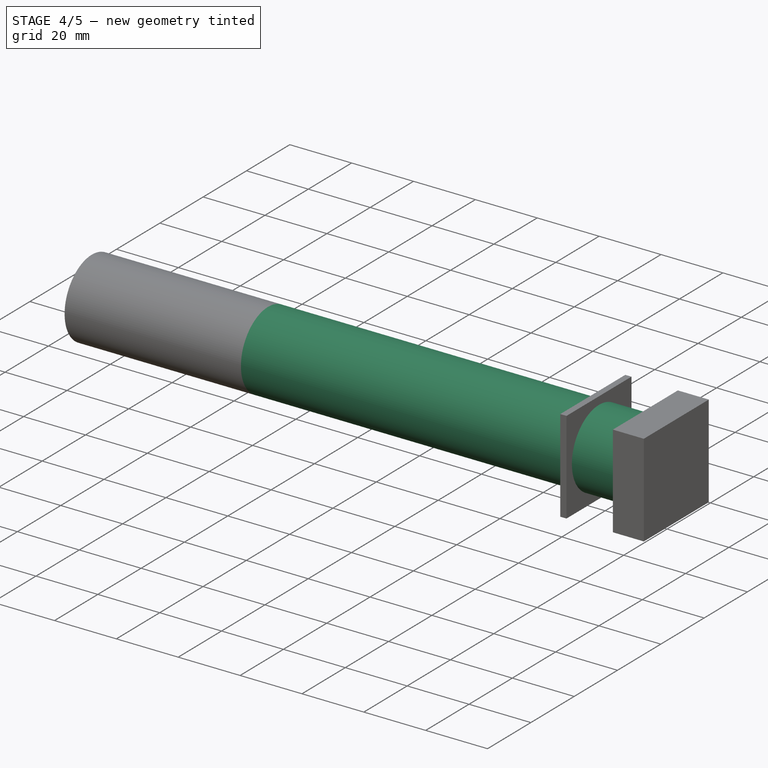
[diagram: stage 4 of 5 — iso view after this stage's code; geometry added in this stage tinted green]
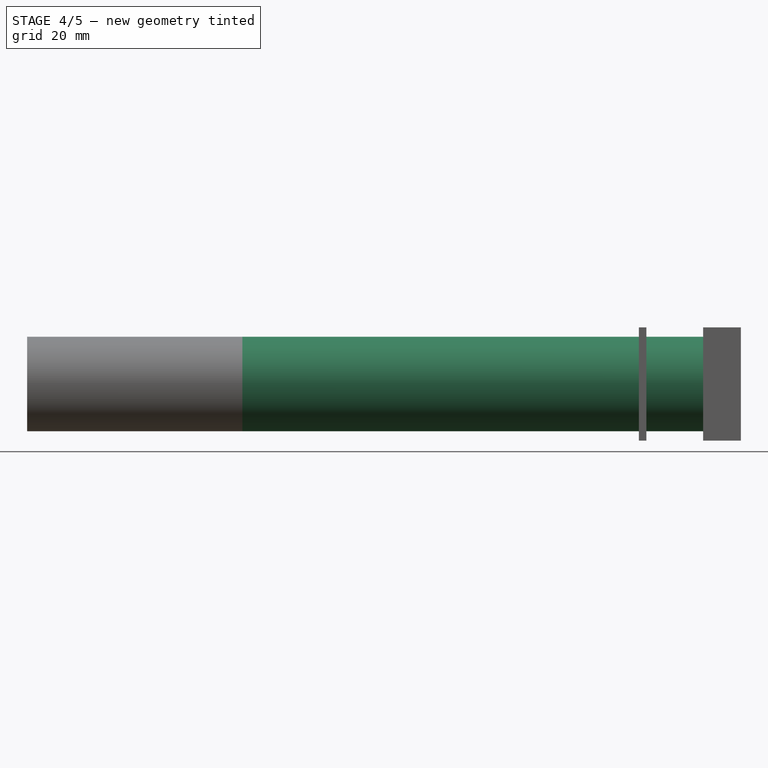
[diagram: stage 4 of 5 — front view after this stage's code; geometry added in this stage tinted green]
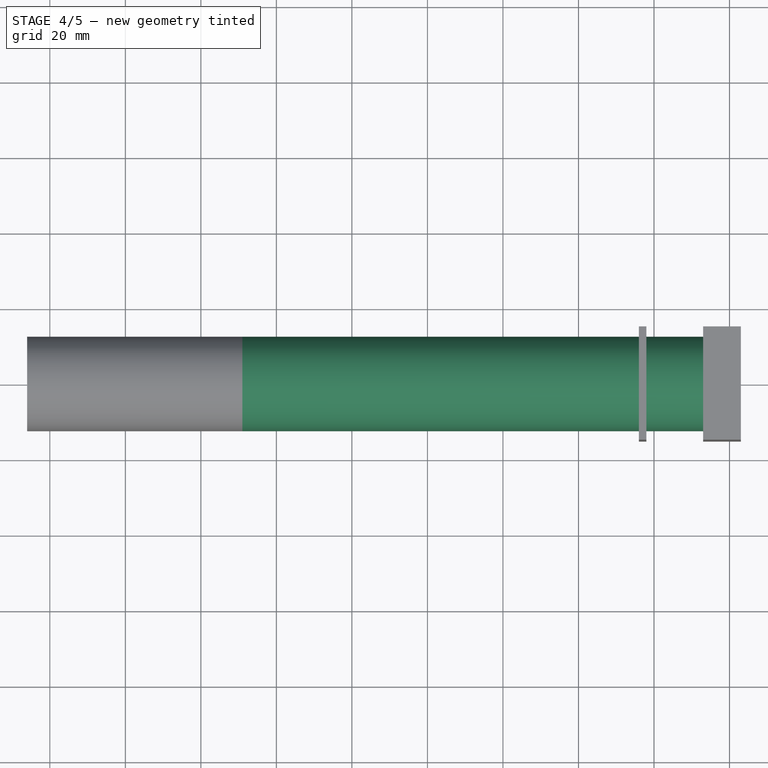
[diagram: stage 4 of 5 — top view after this stage's code; geometry added in this stage tinted green]
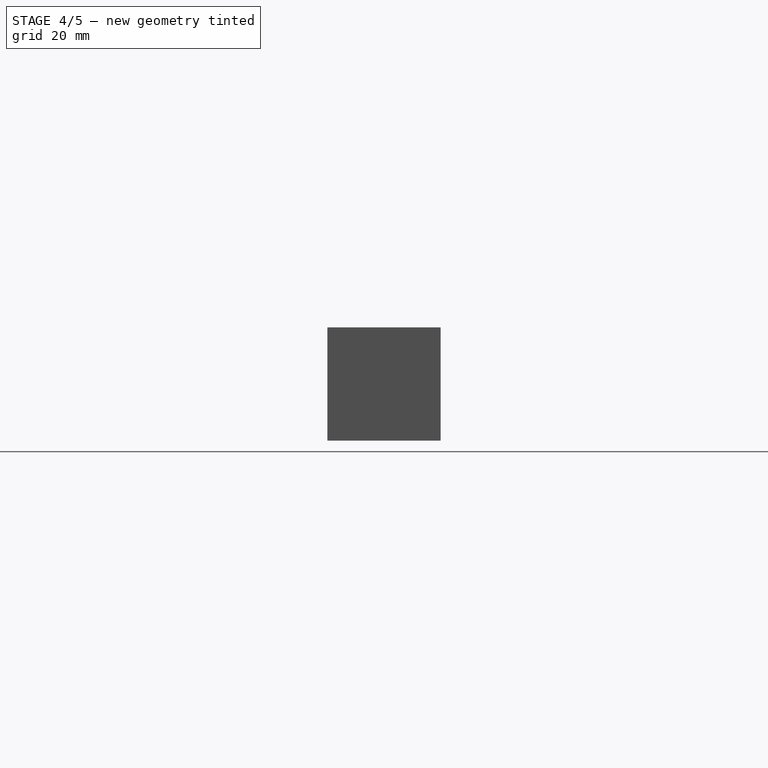
[diagram: stage 4 of 5 — right view after this stage's code; geometry added in this stage tinted green]
FEATURE [Part::Cylinder] Cylinder002  label="Cylinder"
  Angle = 360
  AttacherType = Attacher::AttachEngine3D
  Height = 130
  Placement = pos=(51,0,0) rot=(0,1,0;1.5708rad)
  Radius = 12.5
FEATURE [Part::Cylinder] Cylinder004  label="Cylinder002"
  Angle = 360
  AttacherType = Attacher::AttachEngine3D
  Height = 25
  Placement = pos=(156,0,0) rot=(0,1,0;1.5708rad)
  Radius = 9.5
FEATURE [Part::Cut] Cut001
  Base = -> Cylinder002
  Tool = -> Cylinder003
FEATURE [Part::Cut] Cut002  label="BatteryHolder"
  Base = -> Cut001
  Tool = -> Cylinder004
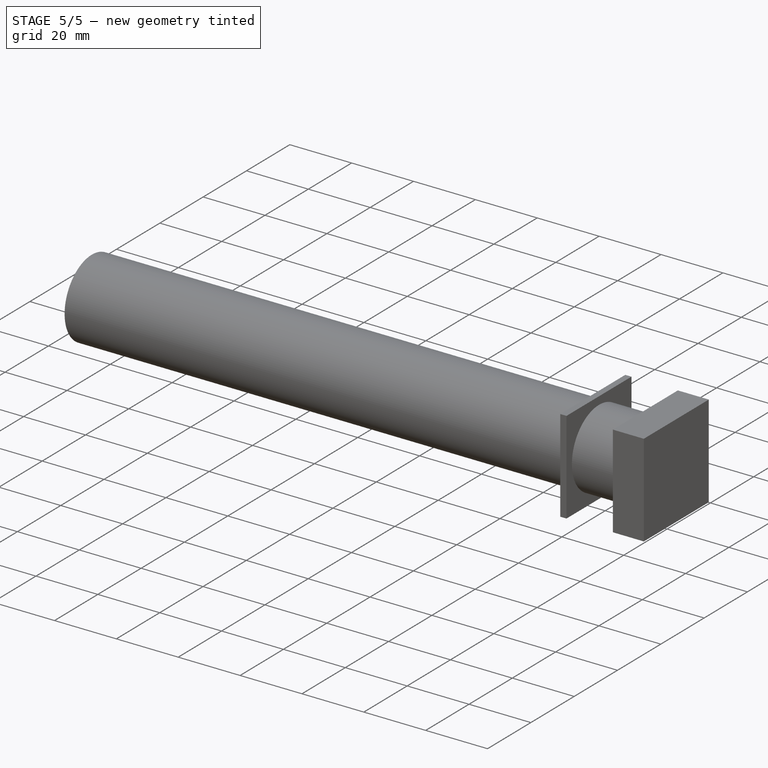
[diagram: stage 5 of 5 — iso view after this stage's code; geometry added in this stage tinted green]
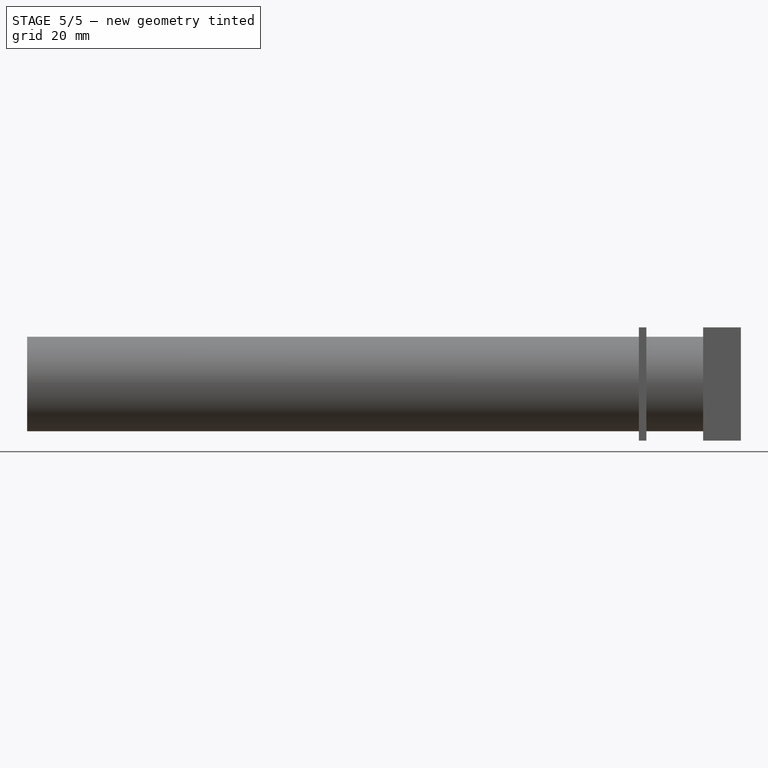
[diagram: stage 5 of 5 — front view after this stage's code; geometry added in this stage tinted green]
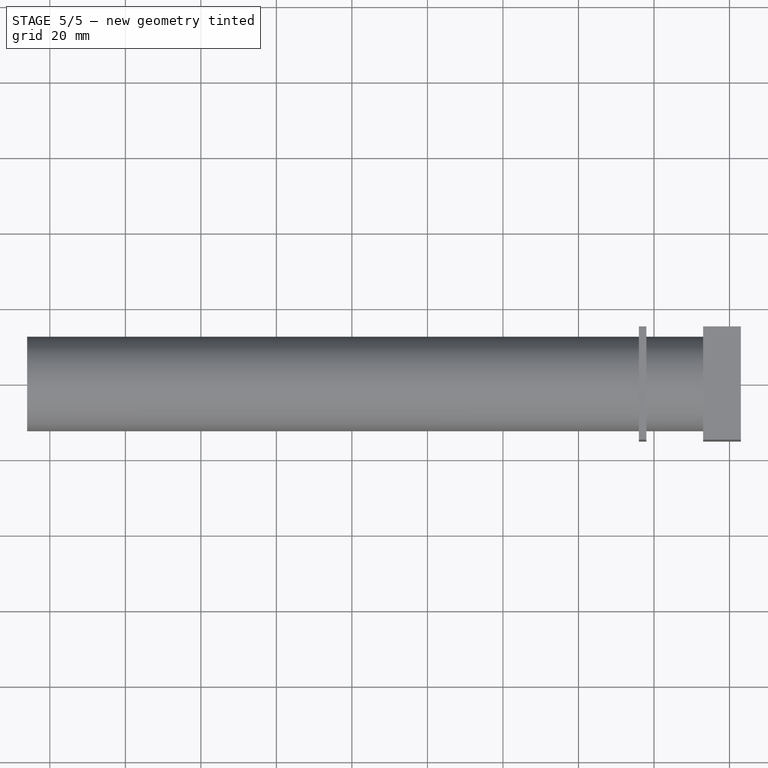
[diagram: stage 5 of 5 — top view after this stage's code; geometry added in this stage tinted green]
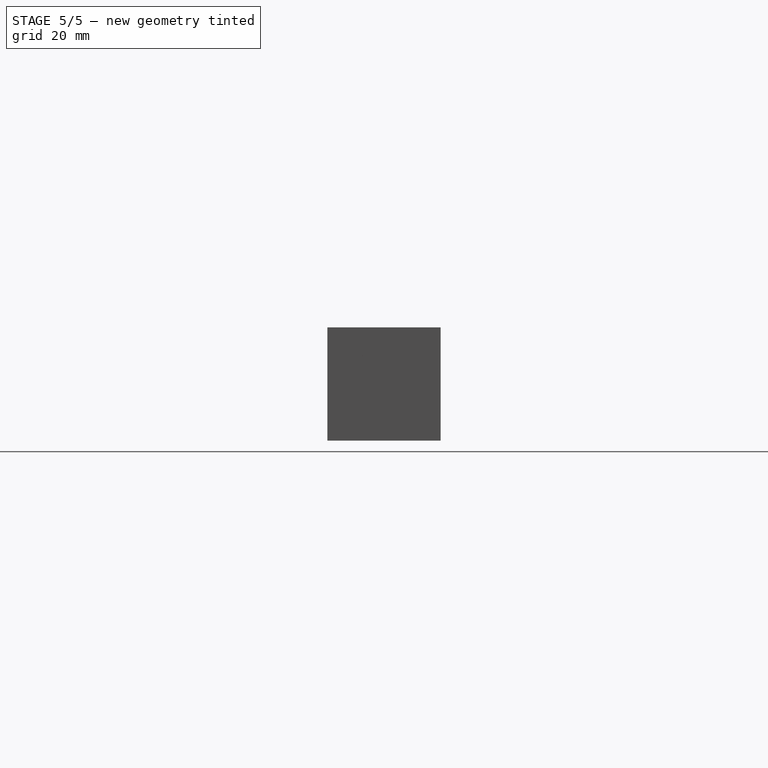
[diagram: stage 5 of 5 — right view after this stage's code; geometry added in this stage tinted green]
FEATURE [Part::Cylinder] Cylinder  label="EXT"
  Angle = 360
  AttacherType = Attacher::AttachEngine3D
  Height = 156
  Radius = 11
FEATURE [Part::Cylinder] Cylinder001  label="INT"
  Angle = 360
  AttacherType = Attacher::AttachEngine3D
  Height = 156
  Radius = 9.5
FEATURE [Part::Cut] Cut  label="SteelTube"
  Base = -> Cylinder
  Placement = pos=(0,0,0) rot=(0,1,0;1.5708rad)
  Refine = true
  Tool = -> Cylinder001
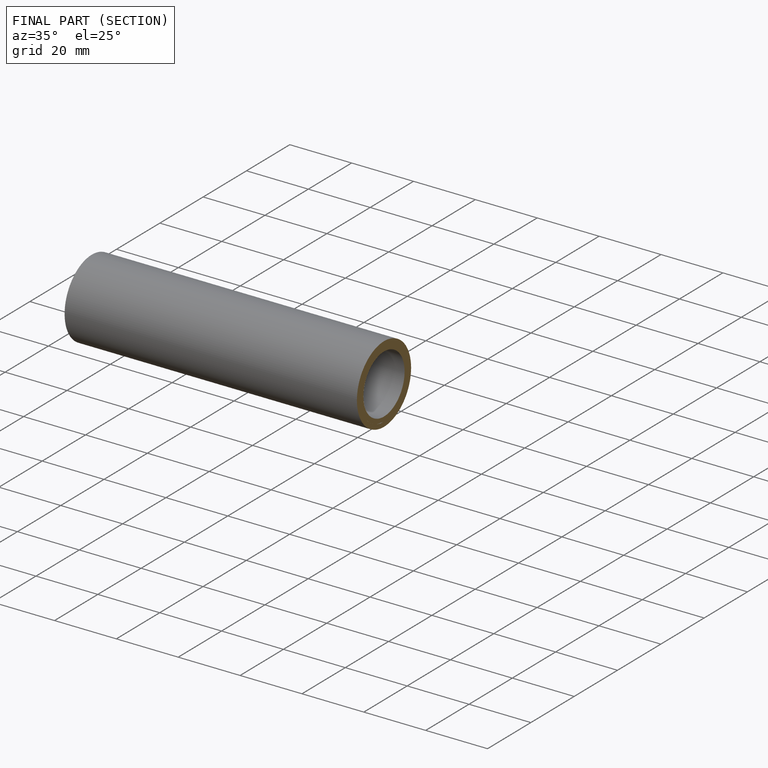
[diagram: finished part — half-section view (interior)]
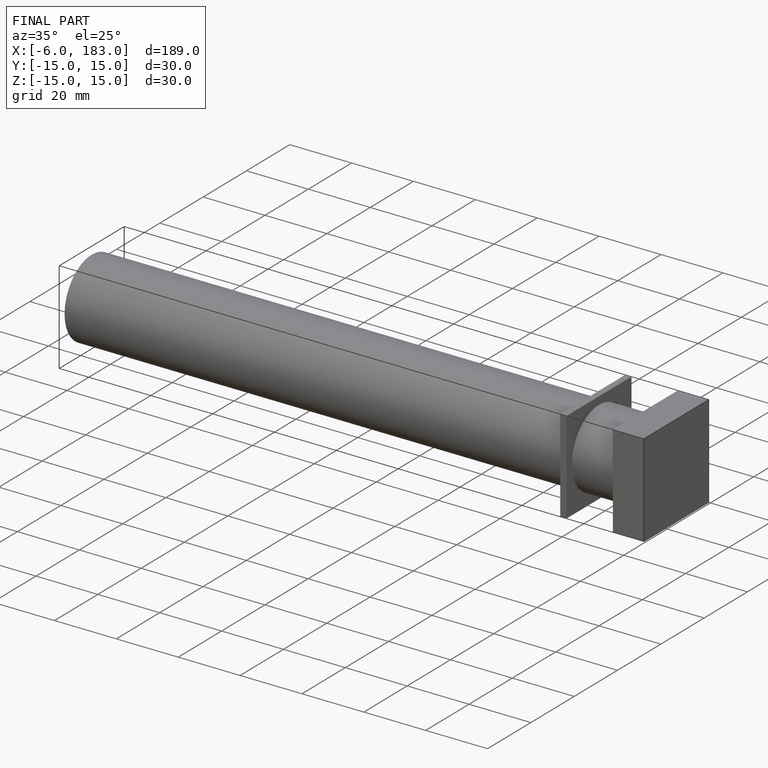
[diagram: finished part — iso view with bounding-box wireframe]
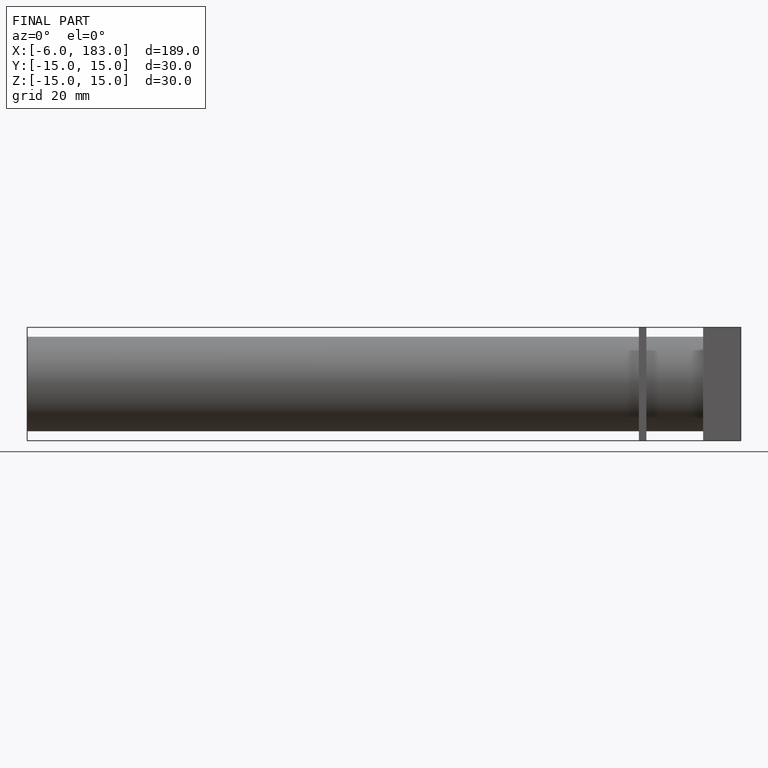
[diagram: finished part — front view with bounding-box wireframe]
